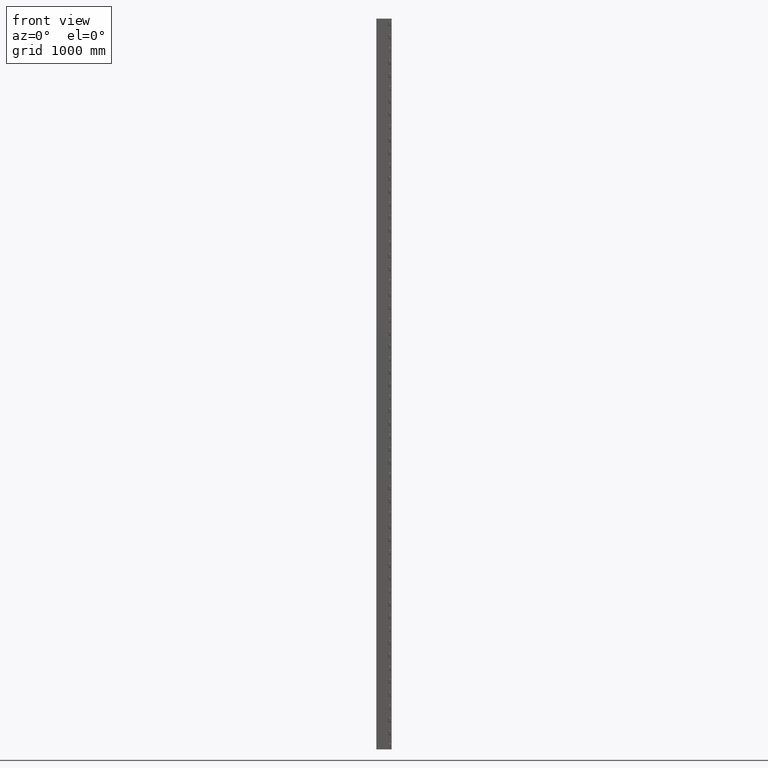
[diagram: clean part render]
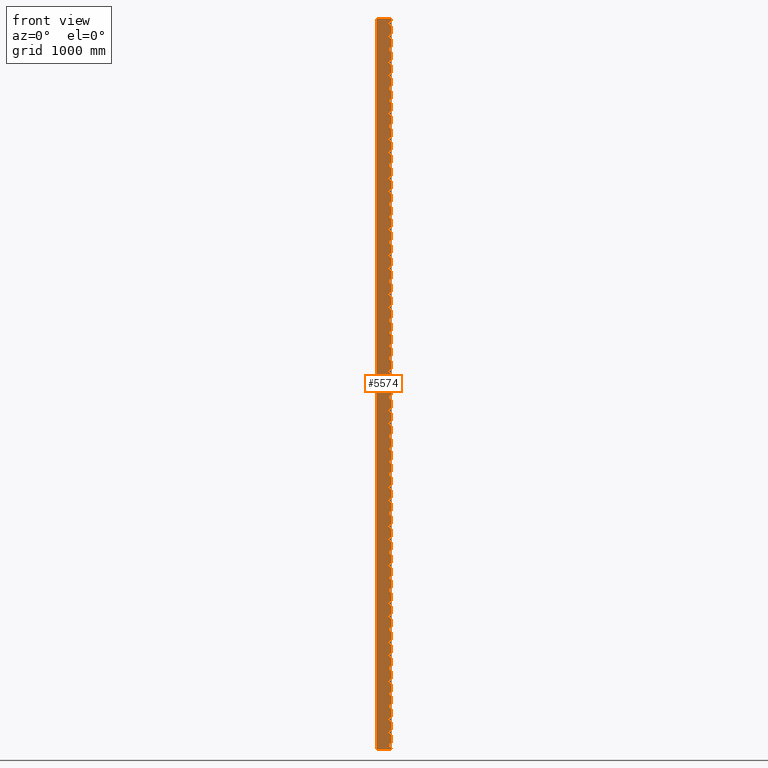
[diagram: same view with one face highlighted and labeled with its STEP entity id]
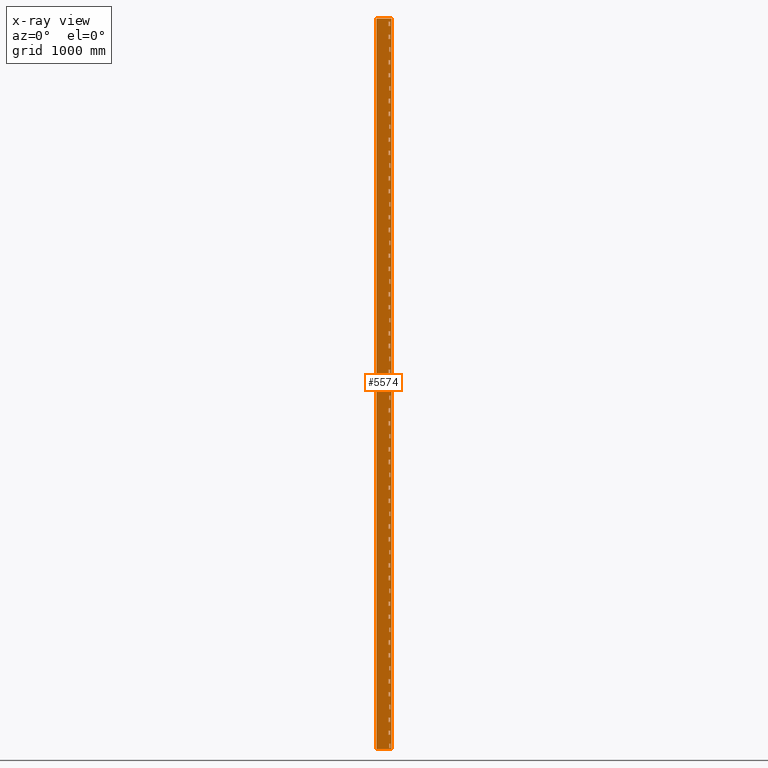
[diagram: x-ray of the same camera — body ghosted, the highlighted face saturated]
A machine part, front view. The second image highlights one B-rep face of the part: STEP entity #5574.
The next image is the same camera in x-ray: the body ghosted, the highlighted face saturated — about 0% of this face is hidden behind the body in this view.
In plain terms, the highlighted planar face has unit normal (0, -1, 0).
Its self-contained STEP definition (entity closure, byte-faithful):
#154=CARTESIAN_POINT('',(6893.3051583912074,6046.4066631202531,49.000000000026475));
#155=VERTEX_POINT('',#154);
#156=CARTESIAN_POINT('',(6865.0208871436116,6046.4066631205405,49.000000000026496));
#157=VERTEX_POINT('',#156);
#158=CARTESIAN_POINT('',(6893.3051583912074,6046.4066631202531,49.000000000026475));
#159=DIRECTION('',(-1.0,-2.572439E-013,0.0));
#160=VECTOR('',#159,28.284271247595825);
#161=LINE('',#158,#160);
#162=EDGE_CURVE('',#155,#157,#161,.T.);
#212=CARTESIAN_POINT('',(6893.3051583912074,6046.4066631202531,-484.99999999997385));
#213=VERTEX_POINT('',#212);
#214=CARTESIAN_POINT('',(6865.0208871436116,6046.4066631205405,-484.99999999997385));
#215=VERTEX_POINT('',#214);
#216=CARTESIAN_POINT('',(6893.3051583912074,6046.4066631202531,-484.99999999997385));
#217=DIRECTION('',(-1.0,-2.572439E-013,0.0));
#218=VECTOR('',#217,28.284271247595825);
#219=LINE('',#216,#218);
#220=EDGE_CURVE('',#213,#215,#219,.T.);
#270=CARTESIAN_POINT('',(6893.3051583912074,6046.4066631202531,-1018.9999999999742));
#271=VERTEX_POINT('',#270);
#272=CARTESIAN_POINT('',(6865.0208871436116,6046.4066631205405,-1018.9999999999742));
#273=VERTEX_POINT('',#272);
#274=CARTESIAN_POINT('',(6893.3051583912074,6046.4066631202531,-1018.9999999999742));
#275=DIRECTION('',(-1.0,-2.572439E-013,0.0));
#276=VECTOR('',#275,28.284271247595825);
#277=LINE('',#274,#276);
#278=EDGE_CURVE('',#271,#273,#277,.T.);
#328=CARTESIAN_POINT('',(6893.3051583912074,6046.4066631202531,-1552.9999999999743));
#329=VERTEX_POINT('',#328);
#330=CARTESIAN_POINT('',(6865.0208871436116,6046.4066631205405,-1552.9999999999743));
#331=VERTEX_POINT('',#330);
#332=CARTESIAN_POINT('',(6893.3051583912074,6046.4066631202531,-1552.9999999999743));
#333=DIRECTION('',(-1.0,-2.572439E-013,0.0));
#334=VECTOR('',#333,28.284271247595825);
#335=LINE('',#332,#334);
#336=EDGE_CURVE('',#329,#331,#335,.T.);
#386=CARTESIAN_POINT('',(6893.3051583912074,6046.4066631202531,-2086.999999999975));
#387=VERTEX_POINT('',#386);
#388=CARTESIAN_POINT('',(6865.0208871436116,6046.4066631205405,-2086.999999999975));
#389=VERTEX_POINT('',#388);
#390=CARTESIAN_POINT('',(6893.3051583912074,6046.4066631202531,-2086.999999999975));
#391=DIRECTION('',(-1.0,-2.572439E-013,0.0));
#392=VECTOR('',#391,28.284271247595825);
#393=LINE('',#390,#392);
#394=EDGE_CURVE('',#387,#389,#393,.T.);
#444=CARTESIAN_POINT('',(6893.3051583912074,6046.4066631202531,-2620.9999999999727));
#445=VERTEX_POINT('',#444);
#446=CARTESIAN_POINT('',(6865.0208871436116,6046.4066631205405,-2620.9999999999727));
#447=VERTEX_POINT('',#446);
#448=CARTESIAN_POINT('',(6893.3051583912074,6046.4066631202531,-2620.9999999999727));
#449=DIRECTION('',(-1.0,-2.572439E-013,0.0));
#450=VECTOR('',#449,28.284271247595825);
#451=LINE('',#448,#450);
#452=EDGE_CURVE('',#445,#447,#451,.T.);
#502=CARTESIAN_POINT('',(6893.3051583912074,6046.4066631202531,-3154.9999999999754));
#503=VERTEX_POINT('',#502);
#504=CARTESIAN_POINT('',(6865.0208871436116,6046.4066631205405,-3154.9999999999754));
#505=VERTEX_POINT('',#504);
#506=CARTESIAN_POINT('',(6893.3051583912074,6046.4066631202531,-3154.9999999999754));
#507=DIRECTION('',(-1.0,-2.572439E-013,0.0));
#508=VECTOR('',#507,28.284271247595825);
#509=LINE('',#506,#508);
#510=EDGE_CURVE('',#503,#505,#509,.T.);
#560=CARTESIAN_POINT('',(6893.3051583912074,6046.4066631202531,-3688.9999999999732));
#561=VERTEX_POINT('',#560);
#562=CARTESIAN_POINT('',(6865.0208871436116,6046.4066631205405,-3688.9999999999732));
#563=VERTEX_POINT('',#562);
#564=CARTESIAN_POINT('',(6893.3051583912074,6046.4066631202531,-3688.9999999999732));
#565=DIRECTION('',(-1.0,-2.572439E-013,0.0));
#566=VECTOR('',#565,28.284271247595825);
#567=LINE('',#564,#566);
#568=EDGE_CURVE('',#561,#563,#567,.T.);
#618=CARTESIAN_POINT('',(6893.3051583912074,6046.4066631202531,-4222.9999999999736));
#619=VERTEX_POINT('',#618);
#620=CARTESIAN_POINT('',(6865.0208871436116,6046.4066631205405,-4222.9999999999736));
#621=VERTEX_POINT('',#620);
#622=CARTESIAN_POINT('',(6893.3051583912074,6046.4066631202531,-4222.9999999999736));
#623=DIRECTION('',(-1.0,-2.572439E-013,0.0));
#624=VECTOR('',#623,28.284271247595825);
#625=LINE('',#622,#624);
#626=EDGE_CURVE('',#619,#621,#625,.T.);
#676=CARTESIAN_POINT('',(6893.3051583912074,6046.4066631202531,-4756.9999999999736));
#677=VERTEX_POINT('',#676);
#678=CARTESIAN_POINT('',(6865.0208871436116,6046.4066631205405,-4756.9999999999736));
#679=VERTEX_POINT('',#678);
#680=CARTESIAN_POINT('',(6893.3051583912074,6046.4066631202531,-4756.9999999999736));
#681=DIRECTION('',(-1.0,-2.572439E-013,0.0));
#682=VECTOR('',#681,28.284271247595825);
#683=LINE('',#680,#682);
#684=EDGE_CURVE('',#677,#679,#683,.T.);
#734=CARTESIAN_POINT('',(6893.3051583912074,6046.4066631202531,-5290.9999999999745));
#735=VERTEX_POINT('',#734);
#736=CARTESIAN_POINT('',(6865.0208871436116,6046.4066631205405,-5290.9999999999745));
#737=VERTEX_POINT('',#736);
#738=CARTESIAN_POINT('',(6893.3051583912074,6046.4066631202531,-5290.9999999999745));
#739=DIRECTION('',(-1.0,-2.572439E-013,0.0));
#740=VECTOR('',#739,28.284271247595825);
#741=LINE('',#738,#740);
#742=EDGE_CURVE('',#735,#737,#741,.T.);
#792=CARTESIAN_POINT('',(6893.3051583912074,6046.4066631202531,-5824.9999999999745));
#793=VERTEX_POINT('',#792);
#794=CARTESIAN_POINT('',(6865.0208871436116,6046.4066631205405,-5824.9999999999745));
#795=VERTEX_POINT('',#794);
#796=CARTESIAN_POINT('',(6893.3051583912074,6046.4066631202531,-5824.9999999999745));
#797=DIRECTION('',(-1.0,-2.572439E-013,0.0));
#798=VECTOR('',#797,28.284271247595825);
#799=LINE('',#796,#798);
#800=EDGE_CURVE('',#793,#795,#799,.T.);
#850=CARTESIAN_POINT('',(6893.3051583912074,6046.4066631202531,-6358.9999999999764));
#851=VERTEX_POINT('',#850);
#852=CARTESIAN_POINT('',(6865.0208871436116,6046.4066631205405,-6358.9999999999764));
#853=VERTEX_POINT('',#852);
#854=CARTESIAN_POINT('',(6893.3051583912074,6046.4066631202531,-6358.9999999999764));
#855=DIRECTION('',(-1.0,-2.572439E-013,0.0));
#856=VECTOR('',#855,28.284271247595825);
#857=LINE('',#854,#856);
#858=EDGE_CURVE('',#851,#853,#857,.T.);
#908=CARTESIAN_POINT('',(6893.3051583912074,6046.4066631202531,-6892.9999999999736));
#909=VERTEX_POINT('',#908);
#910=CARTESIAN_POINT('',(6865.0208871436116,6046.4066631205405,-6892.9999999999736));
#911=VERTEX_POINT('',#910);
#912=CARTESIAN_POINT('',(6893.3051583912074,6046.4066631202531,-6892.9999999999736));
#913=DIRECTION('',(-1.0,-2.572439E-013,0.0));
#914=VECTOR('',#913,28.284271247595825);
#915=LINE('',#912,#914);
#916=EDGE_CURVE('',#909,#911,#915,.T.);
#966=CARTESIAN_POINT('',(6893.3051583912074,6046.4066631202531,-7426.9999999999745));
#967=VERTEX_POINT('',#966);
#968=CARTESIAN_POINT('',(6865.0208871436116,6046.4066631205405,-7426.9999999999745));
#969=VERTEX_POINT('',#968);
#970=CARTESIAN_POINT('',(6893.3051583912074,6046.4066631202531,-7426.9999999999745));
#971=DIRECTION('',(-1.0,-2.572439E-013,0.0));
#972=VECTOR('',#971,28.284271247595825);
#973=LINE('',#970,#972);
#974=EDGE_CURVE('',#967,#969,#973,.T.);
#1024=CARTESIAN_POINT('',(6893.3051583912074,6046.4066631202531,-7960.9999999999745));
#1025=VERTEX_POINT('',#1024);
#1026=CARTESIAN_POINT('',(6865.0208871436116,6046.4066631205405,-7960.9999999999745));
#1027=VERTEX_POINT('',#1026);
#1028=CARTESIAN_POINT('',(6893.3051583912074,6046.4066631202531,-7960.9999999999745));
#1029=DIRECTION('',(-1.0,-2.572439E-013,0.0));
#1030=VECTOR('',#1029,28.284271247595825);
#1031=LINE('',#1028,#1030);
#1032=EDGE_CURVE('',#1025,#1027,#1031,.T.);
#1082=CARTESIAN_POINT('',(6893.3051583912074,6046.4066631202531,-8494.9999999999727));
#1083=VERTEX_POINT('',#1082);
#1084=CARTESIAN_POINT('',(6865.0208871436116,6046.4066631205405,-8494.9999999999727));
#1085=VERTEX_POINT('',#1084);
#1086=CARTESIAN_POINT('',(6893.3051583912074,6046.4066631202531,-8494.9999999999727));
#1087=DIRECTION('',(-1.0,-2.572439E-013,0.0));
#1088=VECTOR('',#1087,28.284271247595825);
#1089=LINE('',#1086,#1088);
#1090=EDGE_CURVE('',#1083,#1085,#1089,.T.);
#1140=CARTESIAN_POINT('',(6893.3051583912074,6046.4066631202531,-9028.9999999999745));
#1141=VERTEX_POINT('',#1140);
#1142=CARTESIAN_POINT('',(6865.0208871436116,6046.4066631205405,-9028.9999999999745));
#1143=VERTEX_POINT('',#1142);
#1144=CARTESIAN_POINT('',(6893.3051583912074,6046.4066631202531,-9028.9999999999745));
#1145=DIRECTION('',(-1.0,-2.572439E-013,0.0));
#1146=VECTOR('',#1145,28.284271247595825);
#1147=LINE('',#1144,#1146);
#1148=EDGE_CURVE('',#1141,#1143,#1147,.T.);
#1198=CARTESIAN_POINT('',(6893.3051583912074,6046.4066631202531,-9562.9999999999764));
#1199=VERTEX_POINT('',#1198);
#1200=CARTESIAN_POINT('',(6865.0208871436116,6046.4066631205405,-9562.9999999999764));
#1201=VERTEX_POINT('',#1200);
#1202=CARTESIAN_POINT('',(6893.3051583912074,6046.4066631202531,-9562.9999999999764));
#1203=DIRECTION('',(-1.0,-2.572439E-013,0.0));
#1204=VECTOR('',#1203,28.284271247595825);
#1205=LINE('',#1202,#1204);
#1206=EDGE_CURVE('',#1199,#1201,#1205,.T.);
#1256=CARTESIAN_POINT('',(6893.3051583907327,6046.4066631202531,-129.00000000001199));
#1257=VERTEX_POINT('',#1256);
#1258=CARTESIAN_POINT('',(6865.0208871432442,6046.4066631202859,-129.00000000001199));
#1259=VERTEX_POINT('',#1258);
#1260=CARTESIAN_POINT('',(6893.3051583907327,6046.4066631202531,-129.00000000001199));
#1261=DIRECTION('',(-1.0,-2.572439E-013,0.0));
#1262=VECTOR('',#1261,28.284271247488505);
#1263=LINE('',#1260,#1262);
#1264=EDGE_CURVE('',#1257,#1259,#1263,.T.);
#1314=CARTESIAN_POINT('',(6893.3051583907327,6046.4066631202531,-663.00000000001228));
#1315=VERTEX_POINT('',#1314);
#1316=CARTESIAN_POINT('',(6865.0208871432442,6046.4066631202859,-663.00000000001228));
#1317=VERTEX_POINT('',#1316);
#1318=CARTESIAN_POINT('',(6893.3051583907327,6046.4066631202531,-663.00000000001228));
#1319=DIRECTION('',(-1.0,-2.572439E-013,0.0));
#1320=VECTOR('',#1319,28.284271247488505);
#1321=LINE('',#1318,#1320);
#1322=EDGE_CURVE('',#1315,#1317,#1321,.T.);
#1372=CARTESIAN_POINT('',(6893.3051583907327,6046.4066631202531,-1197.0000000000127));
#1373=VERTEX_POINT('',#1372);
#1374=CARTESIAN_POINT('',(6865.0208871432442,6046.4066631202859,-1197.0000000000127));
#1375=VERTEX_POINT('',#1374);
#1376=CARTESIAN_POINT('',(6893.3051583907327,6046.4066631202531,-1197.0000000000127));
#1377=DIRECTION('',(-1.0,-2.572439E-013,0.0));
#1378=VECTOR('',#1377,28.284271247488505);
#1379=LINE('',#1376,#1378);
#1380=EDGE_CURVE('',#1373,#1375,#1379,.T.);
#1430=CARTESIAN_POINT('',(6893.3051583907327,6046.4066631202531,-1731.0000000000132));
#1431=VERTEX_POINT('',#1430);
#1432=CARTESIAN_POINT('',(6865.0208871432442,6046.4066631202859,-1731.0000000000132));
#1433=VERTEX_POINT('',#1432);
#1434=CARTESIAN_POINT('',(6893.3051583907327,6046.4066631202531,-1731.0000000000132));
#1435=DIRECTION('',(-1.0,-2.572439E-013,0.0));
#1436=VECTOR('',#1435,28.284271247488505);
#1437=LINE('',#1434,#1436);
#1438=EDGE_CURVE('',#1431,#1433,#1437,.T.);
#1488=CARTESIAN_POINT('',(6893.3051583907327,6046.4066631202531,-2265.0000000000132));
#1489=VERTEX_POINT('',#1488);
#1490=CARTESIAN_POINT('',(6865.0208871432442,6046.4066631202859,-2265.0000000000132));
#1491=VERTEX_POINT('',#1490);
#1492=CARTESIAN_POINT('',(6893.3051583907327,6046.4066631202531,-2265.0000000000132));
#1493=DIRECTION('',(-1.0,-2.572439E-013,0.0));
#1494=VECTOR('',#1493,28.284271247488505);
#1495=LINE('',#1492,#1494);
#1496=EDGE_CURVE('',#1489,#1491,#1495,.T.);
#1546=CARTESIAN_POINT('',(6893.3051583907327,6046.4066631202531,-2799.0000000000127));
#1547=VERTEX_POINT('',#1546);
#1548=CARTESIAN_POINT('',(6865.0208871432442,6046.4066631202859,-2799.0000000000127));
#1549=VERTEX_POINT('',#1548);
#1550=CARTESIAN_POINT('',(6893.3051583907327,6046.4066631202531,-2799.0000000000127));
#1551=DIRECTION('',(-1.0,-2.572439E-013,0.0));
#1552=VECTOR('',#1551,28.284271247488505);
#1553=LINE('',#1550,#1552);
#1554=EDGE_CURVE('',#1547,#1549,#1553,.T.);
#1604=CARTESIAN_POINT('',(6893.3051583907327,6046.4066631202531,-3333.0000000000146));
#1605=VERTEX_POINT('',#1604);
#1606=CARTESIAN_POINT('',(6865.0208871432442,6046.4066631202859,-3333.0000000000146));
#1607=VERTEX_POINT('',#1606);
#1608=CARTESIAN_POINT('',(6893.3051583907327,6046.4066631202531,-3333.0000000000146));
#1609=DIRECTION('',(-1.0,-2.572439E-013,0.0));
#1610=VECTOR('',#1609,28.284271247488505);
#1611=LINE('',#1608,#1610);
#1612=EDGE_CURVE('',#1605,#1607,#1611,.T.);
#1662=CARTESIAN_POINT('',(6893.3051583907327,6046.4066631202531,-3867.0000000000136));
#1663=VERTEX_POINT('',#1662);
#1664=CARTESIAN_POINT('',(6865.0208871432442,6046.4066631202859,-3867.0000000000136));
#1665=VERTEX_POINT('',#1664);
#1666=CARTESIAN_POINT('',(6893.3051583907327,6046.4066631202531,-3867.0000000000136));
#1667=DIRECTION('',(-1.0,-2.572439E-013,0.0));
#1668=VECTOR('',#1667,28.284271247488505);
#1669=LINE('',#1666,#1668);
#1670=EDGE_CURVE('',#1663,#1665,#1669,.T.);
#1720=CARTESIAN_POINT('',(6893.3051583907327,6046.4066631202531,-4401.0000000000136));
#1721=VERTEX_POINT('',#1720);
#1722=CARTESIAN_POINT('',(6865.0208871432442,6046.4066631202859,-4401.0000000000136));
#1723=VERTEX_POINT('',#1722);
#1724=CARTESIAN_POINT('',(6893.3051583907327,6046.4066631202531,-4401.0000000000136));
#1725=DIRECTION('',(-1.0,-2.572439E-013,0.0));
#1726=VECTOR('',#1725,28.284271247488505);
#1727=LINE('',#1724,#1726);
#1728=EDGE_CURVE('',#1721,#1723,#1727,.T.);
#1778=CARTESIAN_POINT('',(6893.3051583907327,6046.4066631202531,-4935.0000000000127));
#1779=VERTEX_POINT('',#1778);
#1780=CARTESIAN_POINT('',(6865.0208871432442,6046.4066631202859,-4935.0000000000127));
#1781=VERTEX_POINT('',#1780);
#1782=CARTESIAN_POINT('',(6893.3051583907327,6046.4066631202531,-4935.0000000000127));
#1783=DIRECTION('',(-1.0,-2.572439E-013,0.0));
#1784=VECTOR('',#1783,28.284271247488505);
#1785=LINE('',#1782,#1784);
#1786=EDGE_CURVE('',#1779,#1781,#1785,.T.);
#1836=CARTESIAN_POINT('',(6893.3051583907327,6046.4066631202531,-5469.0000000000164));
#1837=VERTEX_POINT('',#1836);
#1838=CARTESIAN_POINT('',(6865.0208871432442,6046.4066631202859,-5469.0000000000164));
#1839=VERTEX_POINT('',#1838);
#1840=CARTESIAN_POINT('',(6893.3051583907327,6046.4066631202531,-5469.0000000000164));
#1841=DIRECTION('',(-1.0,-2.572439E-013,0.0));
#1842=VECTOR('',#1841,28.284271247488505);
#1843=LINE('',#1840,#1842);
#1844=EDGE_CURVE('',#1837,#1839,#1843,.T.);
#1894=CARTESIAN_POINT('',(6893.3051583907327,6046.4066631202531,-6003.0000000000127));
#1895=VERTEX_POINT('',#1894);
#1896=CARTESIAN_POINT('',(6865.0208871432442,6046.4066631202859,-6003.0000000000127));
#1897=VERTEX_POINT('',#1896);
#1898=CARTESIAN_POINT('',(6893.3051583907327,6046.4066631202531,-6003.0000000000127));
#1899=DIRECTION('',(-1.0,-2.572439E-013,0.0));
#1900=VECTOR('',#1899,28.284271247488505);
#1901=LINE('',#1898,#1900);
#1902=EDGE_CURVE('',#1895,#1897,#1901,.T.);
#1952=CARTESIAN_POINT('',(6893.3051583907327,6046.4066631202531,-6537.0000000000127));
#1953=VERTEX_POINT('',#1952);
#1954=CARTESIAN_POINT('',(6865.0208871432442,6046.4066631202859,-6537.0000000000127));
#1955=VERTEX_POINT('',#1954);
#1956=CARTESIAN_POINT('',(6893.3051583907327,6046.4066631202531,-6537.0000000000127));
#1957=DIRECTION('',(-1.0,-2.572439E-013,0.0));
#1958=VECTOR('',#1957,28.284271247488505);
#1959=LINE('',#1956,#1958);
#1960=EDGE_CURVE('',#1953,#1955,#1959,.T.);
#2010=CARTESIAN_POINT('',(6893.3051583907327,6046.4066631202531,-7071.0000000000136));
#2011=VERTEX_POINT('',#2010);
#2012=CARTESIAN_POINT('',(6865.0208871432442,6046.4066631202859,-7071.0000000000136));
#2013=VERTEX_POINT('',#2012);
#2014=CARTESIAN_POINT('',(6893.3051583907327,6046.4066631202531,-7071.0000000000136));
#2015=DIRECTION('',(-1.0,-2.572439E-013,0.0));
#2016=VECTOR('',#2015,28.284271247488505);
#2017=LINE('',#2014,#2016);
#2018=EDGE_CURVE('',#2011,#2013,#2017,.T.);
#2068=CARTESIAN_POINT('',(6893.3051583907327,6046.4066631202531,-7605.0000000000127));
#2069=VERTEX_POINT('',#2068);
#2070=CARTESIAN_POINT('',(6865.0208871432442,6046.4066631202859,-7605.0000000000127));
#2071=VERTEX_POINT('',#2070);
#2072=CARTESIAN_POINT('',(6893.3051583907327,6046.4066631202531,-7605.0000000000127));
#2073=DIRECTION('',(-1.0,-2.572439E-013,0.0));
#2074=VECTOR('',#2073,28.284271247488505);
#2075=LINE('',#2072,#2074);
#2076=EDGE_CURVE('',#2069,#2071,#2075,.T.);
#2126=CARTESIAN_POINT('',(6893.3051583907327,6046.4066631202531,-8139.0000000000127));
#2127=VERTEX_POINT('',#2126);
#2128=CARTESIAN_POINT('',(6865.0208871432442,6046.4066631202859,-8139.0000000000127));
#2129=VERTEX_POINT('',#2128);
#2130=CARTESIAN_POINT('',(6893.3051583907327,6046.4066631202531,-8139.0000000000127));
#2131=DIRECTION('',(-1.0,-2.572439E-013,0.0));
#2132=VECTOR('',#2131,28.284271247488505);
#2133=LINE('',#2130,#2132);
#2134=EDGE_CURVE('',#2127,#2129,#2133,.T.);
#2184=CARTESIAN_POINT('',(6893.3051583907327,6046.4066631202531,-8673.0000000000127));
#2185=VERTEX_POINT('',#2184);
#2186=CARTESIAN_POINT('',(6865.0208871432442,6046.4066631202859,-8673.0000000000127));
#2187=VERTEX_POINT('',#2186);
#2188=CARTESIAN_POINT('',(6893.3051583907327,6046.4066631202531,-8673.0000000000127));
#2189=DIRECTION('',(-1.0,-2.572439E-013,0.0));
#2190=VECTOR('',#2189,28.284271247488505);
#2191=LINE('',#2188,#2190);
#2192=EDGE_CURVE('',#2185,#2187,#2191,.T.);
#2242=CARTESIAN_POINT('',(6893.3051583907327,6046.4066631202531,-9207.0000000000146));
#2243=VERTEX_POINT('',#2242);
#2244=CARTESIAN_POINT('',(6865.0208871432442,6046.4066631202859,-9207.0000000000146));
#2245=VERTEX_POINT('',#2244);
#2246=CARTESIAN_POINT('',(6893.3051583907327,6046.4066631202531,-9207.0000000000146));
#2247=DIRECTION('',(-1.0,-2.572439E-013,0.0));
#2248=VECTOR('',#2247,28.284271247488505);
#2249=LINE('',#2246,#2248);
#2250=EDGE_CURVE('',#2243,#2245,#2249,.T.);
#2300=CARTESIAN_POINT('',(6893.3051583907327,6046.4066631202531,-9741.0000000000146));
#2301=VERTEX_POINT('',#2300);
#2302=CARTESIAN_POINT('',(6865.0208871432442,6046.4066631202859,-9741.0000000000146));
#2303=VERTEX_POINT('',#2302);
#2304=CARTESIAN_POINT('',(6893.3051583907327,6046.4066631202531,-9741.0000000000146));
#2305=DIRECTION('',(-1.0,-2.572439E-013,0.0));
#2306=VECTOR('',#2305,28.284271247488505);
#2307=LINE('',#2304,#2306);
#2308=EDGE_CURVE('',#2301,#2303,#2307,.T.);
#2358=CARTESIAN_POINT('',(6875.0208871430568,6046.4066631202495,-4639.0000000000018));
#2359=VERTEX_POINT('',#2358);
#2360=CARTESIAN_POINT('',(6895.0208871430605,6046.4066631202531,-4639.0000000000018));
#2361=VERTEX_POINT('',#2360);
#2362=CARTESIAN_POINT('',(6875.0208871430568,6046.4066631202495,-4639.0000000000018));
#2363=DIRECTION('',(1.0,2.273737E-013,0.0));
#2364=VECTOR('',#2363,20.000000000002728);
#2365=LINE('',#2362,#2364);
#2366=EDGE_CURVE('',#2359,#2361,#2365,.T.);
#2398=CARTESIAN_POINT('',(6875.0208871430568,6046.4066631202495,-4105.0000000000018));
#2399=VERTEX_POINT('',#2398);
#2400=CARTESIAN_POINT('',(6895.0208871430605,6046.4066631202531,-4105.0000000000018));
#2401=VERTEX_POINT('',#2400);
#2402=CARTESIAN_POINT('',(6875.0208871430568,6046.4066631202495,-4105.0000000000018));
#2403=DIRECTION('',(1.0,2.273737E-013,0.0));
#2404=VECTOR('',#2403,20.000000000002728);
#2405=LINE('',#2402,#2404);
#2406=EDGE_CURVE('',#2399,#2401,#2405,.T.);
#2438=CARTESIAN_POINT('',(6875.0208871430568,6046.4066631202495,-3571.0000000000032));
#2439=VERTEX_POINT('',#2438);
#2440=CARTESIAN_POINT('',(6895.0208871430605,6046.4066631202531,-3571.0000000000032));
#2441=VERTEX_POINT('',#2440);
#2442=CARTESIAN_POINT('',(6875.0208871430568,6046.4066631202495,-3571.0000000000032));
#2443=DIRECTION('',(1.0,2.273737E-013,0.0));
#2444=VECTOR('',#2443,20.000000000002728);
#2445=LINE('',#2442,#2444);
#2446=EDGE_CURVE('',#2439,#2441,#2445,.T.);
#2478=CARTESIAN_POINT('',(6875.0208871430568,6046.4066631202495,-3037.0000000000009));
#2479=VERTEX_POINT('',#2478);
#2480=CARTESIAN_POINT('',(6895.0208871430605,6046.4066631202531,-3037.0000000000009));
#2481=VERTEX_POINT('',#2480);
#2482=CARTESIAN_POINT('',(6875.0208871430568,6046.4066631202495,-3037.0000000000009));
#2483=DIRECTION('',(1.0,2.273737E-013,0.0));
#2484=VECTOR('',#2483,20.000000000002728);
#2485=LINE('',#2482,#2484);
#2486=EDGE_CURVE('',#2479,#2481,#2485,.T.);
#2518=CARTESIAN_POINT('',(6875.0208871430568,6046.4066631202495,-2503.0000000000014));
#2519=VERTEX_POINT('',#2518);
#2520=CARTESIAN_POINT('',(6895.0208871430605,6046.4066631202531,-2503.0000000000014));
#2521=VERTEX_POINT('',#2520);
#2522=CARTESIAN_POINT('',(6875.0208871430568,6046.4066631202495,-2503.0000000000014));
#2523=DIRECTION('',(1.0,2.273737E-013,0.0));
#2524=VECTOR('',#2523,20.000000000002728);
#2525=LINE('',#2522,#2524);
#2526=EDGE_CURVE('',#2519,#2521,#2525,.T.);
#2558=CARTESIAN_POINT('',(6875.0208871430568,6046.4066631202495,-1969.0000000000027));
#2559=VERTEX_POINT('',#2558);
#2560=CARTESIAN_POINT('',(6895.0208871430605,6046.4066631202531,-1969.0000000000027));
#2561=VERTEX_POINT('',#2560);
#2562=CARTESIAN_POINT('',(6875.0208871430568,6046.4066631202495,-1969.0000000000027));
#2563=DIRECTION('',(1.0,2.273737E-013,0.0));
#2564=VECTOR('',#2563,20.000000000002728);
#2565=LINE('',#2562,#2564);
#2566=EDGE_CURVE('',#2559,#2561,#2565,.T.);
#2598=CARTESIAN_POINT('',(6875.0208871430568,6046.4066631202495,-1435.0000000000018));
#2599=VERTEX_POINT('',#2598);
#2600=CARTESIAN_POINT('',(6895.0208871430605,6046.4066631202531,-1435.0000000000018));
#2601=VERTEX_POINT('',#2600);
#2602=CARTESIAN_POINT('',(6875.0208871430568,6046.4066631202495,-1435.0000000000018));
#2603=DIRECTION('',(1.0,2.273737E-013,0.0));
#2604=VECTOR('',#2603,20.000000000002728);
#2605=LINE('',#2602,#2604);
#2606=EDGE_CURVE('',#2599,#2601,#2605,.T.);
#2638=CARTESIAN_POINT('',(6875.0208871430568,6046.4066631202495,-901.00000000000227));
#2639=VERTEX_POINT('',#2638);
#2640=CARTESIAN_POINT('',(6895.0208871430605,6046.4066631202531,-901.00000000000227));
#2641=VERTEX_POINT('',#2640);
#2642=CARTESIAN_POINT('',(6875.0208871430568,6046.4066631202495,-901.00000000000227));
#2643=DIRECTION('',(1.0,2.273737E-013,0.0));
#2644=VECTOR('',#2643,20.000000000002728);
#2645=LINE('',#2642,#2644);
#2646=EDGE_CURVE('',#2639,#2641,#2645,.T.);
#2678=CARTESIAN_POINT('',(6875.0208871430568,6046.4066631202495,-367.00000000000216));
#2679=VERTEX_POINT('',#2678);
#2680=CARTESIAN_POINT('',(6895.0208871430605,6046.4066631202531,-367.00000000000216));
#2681=VERTEX_POINT('',#2680);
#2682=CARTESIAN_POINT('',(6875.0208871430568,6046.4066631202495,-367.00000000000216));
#2683=DIRECTION('',(1.0,2.273737E-013,0.0));
#2684=VECTOR('',#2683,20.000000000002728);
#2685=LINE('',#2682,#2684);
#2686=EDGE_CURVE('',#2679,#2681,#2685,.T.);
#2718=CARTESIAN_POINT('',(6875.0208871430568,6046.4066631202495,-9979.0000000000036));
#2719=VERTEX_POINT('',#2718);
#2720=CARTESIAN_POINT('',(6895.0208871430605,6046.4066631202531,-9979.0000000000036));
#2721=VERTEX_POINT('',#2720);
#2722=CARTESIAN_POINT('',(6875.0208871430568,6046.4066631202495,-9979.0000000000036));
#2723=DIRECTION('',(1.0,2.273737E-013,0.0));
#2724=VECTOR('',#2723,20.000000000002728);
#2725=LINE('',#2722,#2724);
#2726=EDGE_CURVE('',#2719,#2721,#2725,.T.);
#2758=CARTESIAN_POINT('',(6875.0208871430568,6046.4066631202495,-9445.0000000000036));
#2759=VERTEX_POINT('',#2758);
#2760=CARTESIAN_POINT('',(6895.0208871430605,6046.4066631202531,-9445.0000000000036));
#2761=VERTEX_POINT('',#2760);
#2762=CARTESIAN_POINT('',(6875.0208871430568,6046.4066631202495,-9445.0000000000036));
#2763=DIRECTION('',(1.0,2.273737E-013,0.0));
#2764=VECTOR('',#2763,20.000000000002728);
#2765=LINE('',#2762,#2764);
#2766=EDGE_CURVE('',#2759,#2761,#2765,.T.);
#2798=CARTESIAN_POINT('',(6875.0208871430568,6046.4066631202495,-8911.0000000000036));
#2799=VERTEX_POINT('',#2798);
#2800=CARTESIAN_POINT('',(6895.0208871430605,6046.4066631202531,-8911.0000000000036));
#2801=VERTEX_POINT('',#2800);
#2802=CARTESIAN_POINT('',(6875.0208871430568,6046.4066631202495,-8911.0000000000036));
#2803=DIRECTION('',(1.0,2.273737E-013,0.0));
#2804=VECTOR('',#2803,20.000000000002728);
#2805=LINE('',#2802,#2804);
#2806=EDGE_CURVE('',#2799,#2801,#2805,.T.);
#2838=CARTESIAN_POINT('',(6875.0208871430568,6046.4066631202495,-8377.0000000000036));
#2839=VERTEX_POINT('',#2838);
#2840=CARTESIAN_POINT('',(6895.0208871430605,6046.4066631202531,-8377.0000000000036));
#2841=VERTEX_POINT('',#2840);
#2842=CARTESIAN_POINT('',(6875.0208871430568,6046.4066631202495,-8377.0000000000036));
#2843=DIRECTION('',(1.0,2.273737E-013,0.0));
#2844=VECTOR('',#2843,20.000000000002728);
#2845=LINE('',#2842,#2844);
#2846=EDGE_CURVE('',#2839,#2841,#2845,.T.);
#2878=CARTESIAN_POINT('',(6875.0208871430568,6046.4066631202495,-7843.0000000000036));
#2879=VERTEX_POINT('',#2878);
#2880=CARTESIAN_POINT('',(6895.0208871430605,6046.4066631202531,-7843.0000000000036));
#2881=VERTEX_POINT('',#2880);
#2882=CARTESIAN_POINT('',(6875.0208871430568,6046.4066631202495,-7843.0000000000036));
#2883=DIRECTION('',(1.0,2.273737E-013,0.0));
#2884=VECTOR('',#2883,20.000000000002728);
#2885=LINE('',#2882,#2884);
#2886=EDGE_CURVE('',#2879,#2881,#2885,.T.);
#2918=CARTESIAN_POINT('',(6875.0208871430568,6046.4066631202495,-7309.0000000000036));
#2919=VERTEX_POINT('',#2918);
#2920=CARTESIAN_POINT('',(6895.0208871430605,6046.4066631202531,-7309.0000000000036));
#2921=VERTEX_POINT('',#2920);
#2922=CARTESIAN_POINT('',(6875.0208871430568,6046.4066631202495,-7309.0000000000036));
#2923=DIRECTION('',(1.0,2.273737E-013,0.0));
#2924=VECTOR('',#2923,20.000000000002728);
#2925=LINE('',#2922,#2924);
#2926=EDGE_CURVE('',#2919,#2921,#2925,.T.);
#2958=CARTESIAN_POINT('',(6875.0208871430568,6046.4066631202495,-6775.0000000000018));
#2959=VERTEX_POINT('',#2958);
#2960=CARTESIAN_POINT('',(6895.0208871430605,6046.4066631202531,-6775.0000000000018));
#2961=VERTEX_POINT('',#2960);
#2962=CARTESIAN_POINT('',(6875.0208871430568,6046.4066631202495,-6775.0000000000018));
#2963=DIRECTION('',(1.0,2.273737E-013,0.0));
#2964=VECTOR('',#2963,20.000000000002728);
#2965=LINE('',#2962,#2964);
#2966=EDGE_CURVE('',#2959,#2961,#2965,.T.);
#2998=CARTESIAN_POINT('',(6875.0208871430568,6046.4066631202495,-6241.0000000000018));
#2999=VERTEX_POINT('',#2998);
#3000=CARTESIAN_POINT('',(6895.0208871430605,6046.4066631202531,-6241.0000000000018));
#3001=VERTEX_POINT('',#3000);
#3002=CARTESIAN_POINT('',(6875.0208871430568,6046.4066631202495,-6241.0000000000018));
#3003=DIRECTION('',(1.0,2.273737E-013,0.0));
#3004=VECTOR('',#3003,20.000000000002728);
#3005=LINE('',#3002,#3004);
#3006=EDGE_CURVE('',#2999,#3001,#3005,.T.);
#3038=CARTESIAN_POINT('',(6875.0208871430568,6046.4066631202495,-5707.0000000000027));
#3039=VERTEX_POINT('',#3038);
#3040=CARTESIAN_POINT('',(6895.0208871430605,6046.4066631202531,-5707.0000000000027));
#3041=VERTEX_POINT('',#3040);
#3042=CARTESIAN_POINT('',(6875.0208871430568,6046.4066631202495,-5707.0000000000027));
#3043=DIRECTION('',(1.0,2.273737E-013,0.0));
#3044=VECTOR('',#3043,20.000000000002728);
#3045=LINE('',#3042,#3044);
#3046=EDGE_CURVE('',#3039,#3041,#3045,.T.);
#3078=CARTESIAN_POINT('',(6875.0208871430568,6046.4066631202495,-5113.0000000000027));
#3079=VERTEX_POINT('',#3078);
#3080=CARTESIAN_POINT('',(6875.0208871430568,6046.4066631202495,-5173.0000000000018));
#3081=VERTEX_POINT('',#3080);
#3082=CARTESIAN_POINT('',(6875.0208871430568,6046.4066631202495,-5113.0000000000027));
#3083=DIRECTION('',(0.0,0.0,-1.0));
#3084=VECTOR('',#3083,59.999999999999091);
#3085=LINE('',#3082,#3084);
#3086=EDGE_CURVE('',#3079,#3081,#3085,.T.);
#3136=CARTESIAN_POINT('',(6875.0208871430568,6046.4066631202495,-5647.0000000000018));
#3137=VERTEX_POINT('',#3136);
#3138=CARTESIAN_POINT('',(6875.0208871430568,6046.4066631202495,-5647.0000000000018));
#3139=DIRECTION('',(0.0,0.0,-1.0));
#3140=VECTOR('',#3139,60.0);
#3141=LINE('',#3138,#3140);
#3142=EDGE_CURVE('',#3137,#3039,#3141,.T.);
#3185=CARTESIAN_POINT('',(6875.0208871430568,6046.4066631202495,-6181.0000000000018));
#3186=VERTEX_POINT('',#3185);
#3187=CARTESIAN_POINT('',(6875.0208871430568,6046.4066631202495,-6181.0000000000018));
#3188=DIRECTION('',(0.0,0.0,-1.0));
#3189=VECTOR('',#3188,60.0);
#3190=LINE('',#3187,#3189);
#3191=EDGE_CURVE('',#3186,#2999,#3190,.T.);
#3234=CARTESIAN_POINT('',(6875.0208871430568,6046.4066631202495,-6715.0000000000018));
#3235=VERTEX_POINT('',#3234);
#3236=CARTESIAN_POINT('',(6875.0208871430568,6046.4066631202495,-6715.0000000000018));
#3237=DIRECTION('',(0.0,0.0,-1.0));
#3238=VECTOR('',#3237,60.000000000000909);
#3239=LINE('',#3236,#3238);
#3240=EDGE_CURVE('',#3235,#2959,#3239,.T.);
#3283=CARTESIAN_POINT('',(6875.0208871430568,6046.4066631202495,-7249.0000000000036));
#3284=VERTEX_POINT('',#3283);
#3285=CARTESIAN_POINT('',(6875.0208871430568,6046.4066631202495,-7249.0000000000036));
#3286=DIRECTION('',(0.0,0.0,-1.0));
#3287=VECTOR('',#3286,59.999999999999091);
#3288=LINE('',#3285,#3287);
#3289=EDGE_CURVE('',#3284,#2919,#3288,.T.);
#3332=CARTESIAN_POINT('',(6875.0208871430568,6046.4066631202495,-7783.0000000000036));
#3333=VERTEX_POINT('',#3332);
#3334=CARTESIAN_POINT('',(6875.0208871430568,6046.4066631202495,-7783.0000000000036));
#3335=DIRECTION('',(0.0,0.0,-1.0));
#3336=VECTOR('',#3335,59.999999999999091);
#3337=LINE('',#3334,#3336);
#3338=EDGE_CURVE('',#3333,#2879,#3337,.T.);
#3381=CARTESIAN_POINT('',(6875.0208871430568,6046.4066631202495,-8317.0000000000055));
#3382=VERTEX_POINT('',#3381);
#3383=CARTESIAN_POINT('',(6875.0208871430568,6046.4066631202495,-8317.0000000000055));
#3384=DIRECTION('',(0.0,0.0,-1.0));
#3385=VECTOR('',#3384,60.0);
#3386=LINE('',#3383,#3385);
#3387=EDGE_CURVE('',#3382,#2839,#3386,.T.);
#3430=CARTESIAN_POINT('',(6875.0208871430568,6046.4066631202495,-8851.0000000000055));
#3431=VERTEX_POINT('',#3430);
#3432=CARTESIAN_POINT('',(6875.0208871430568,6046.4066631202495,-8851.0000000000055));
#3433=DIRECTION('',(0.0,0.0,-1.0));
#3434=VECTOR('',#3433,60.0);
#3435=LINE('',#3432,#3434);
#3436=EDGE_CURVE('',#3431,#2799,#3435,.T.);
#3479=CARTESIAN_POINT('',(6875.0208871430568,6046.4066631202495,-9385.0000000000036));
#3480=VERTEX_POINT('',#3479);
#3481=CARTESIAN_POINT('',(6875.0208871430568,6046.4066631202495,-9385.0000000000036));
#3482=DIRECTION('',(0.0,0.0,-1.0));
#3483=VECTOR('',#3482,60.0);
#3484=LINE('',#3481,#3483);
#3485=EDGE_CURVE('',#3480,#2759,#3484,.T.);
#3528=CARTESIAN_POINT('',(6875.0208871430568,6046.4066631202495,-9919.0000000000036));
#3529=VERTEX_POINT('',#3528);
#3530=CARTESIAN_POINT('',(6875.0208871430568,6046.4066631202495,-9919.0000000000036));
#3531=DIRECTION('',(0.0,0.0,-1.0));
#3532=VECTOR('',#3531,60.0);
#3533=LINE('',#3530,#3532);
#3534=EDGE_CURVE('',#3529,#2719,#3533,.T.);
#3577=CARTESIAN_POINT('',(6875.0208871430568,6046.4066631202495,-307.0000000000021));
#3578=VERTEX_POINT('',#3577);
#3579=CARTESIAN_POINT('',(6875.0208871430568,6046.4066631202495,-307.0000000000021));
#3580=DIRECTION('',(0.0,0.0,-1.0));
#3581=VECTOR('',#3580,60.000000000000057);
#3582=LINE('',#3579,#3581);
#3583=EDGE_CURVE('',#3578,#2679,#3582,.T.);
#3626=CARTESIAN_POINT('',(6875.0208871430568,6046.4066631202495,-841.00000000000239));
#3627=VERTEX_POINT('',#3626);
#3628=CARTESIAN_POINT('',(6875.0208871430568,6046.4066631202495,-841.00000000000239));
#3629=DIRECTION('',(0.0,0.0,-1.0));
#3630=VECTOR('',#3629,60.0);
#3631=LINE('',#3628,#3630);
#3632=EDGE_CURVE('',#3627,#2639,#3631,.T.);
#3675=CARTESIAN_POINT('',(6875.0208871430568,6046.4066631202495,-1375.0000000000023));
#3676=VERTEX_POINT('',#3675);
#3677=CARTESIAN_POINT('',(6875.0208871430568,6046.4066631202495,-1375.0000000000023));
#3678=DIRECTION('',(0.0,0.0,-1.0));
#3679=VECTOR('',#3678,59.999999999999545);
#3680=LINE('',#3677,#3679);
#3681=EDGE_CURVE('',#3676,#2599,#3680,.T.);
#3724=CARTESIAN_POINT('',(6875.0208871430568,6046.4066631202495,-1909.0000000000018));
#3725=VERTEX_POINT('',#3724);
#3726=CARTESIAN_POINT('',(6875.0208871430568,6046.4066631202495,-1909.0000000000018));
#3727=DIRECTION('',(0.0,0.0,-1.0));
#3728=VECTOR('',#3727,60.000000000000909);
#3729=LINE('',#3726,#3728);
#3730=EDGE_CURVE('',#3725,#2559,#3729,.T.);
#3773=CARTESIAN_POINT('',(6875.0208871430568,6046.4066631202495,-2443.0000000000023));
#3774=VERTEX_POINT('',#3773);
#3775=CARTESIAN_POINT('',(6875.0208871430568,6046.4066631202495,-2443.0000000000023));
#3776=DIRECTION('',(0.0,0.0,-1.0));
#3777=VECTOR('',#3776,59.999999999999545);
#3778=LINE('',#3775,#3777);
#3779=EDGE_CURVE('',#3774,#2519,#3778,.T.);
#3822=CARTESIAN_POINT('',(6875.0208871430568,6046.4066631202495,-2977.0000000000027));
#3823=VERTEX_POINT('',#3822);
#3824=CARTESIAN_POINT('',(6875.0208871430568,6046.4066631202495,-2977.0000000000027));
#3825=DIRECTION('',(0.0,0.0,-1.0));
#3826=VECTOR('',#3825,59.999999999998181);
#3827=LINE('',#3824,#3826);
#3828=EDGE_CURVE('',#3823,#2479,#3827,.T.);
#3871=CARTESIAN_POINT('',(6875.0208871430568,6046.4066631202495,-3511.0000000000027));
#3872=VERTEX_POINT('',#3871);
#3873=CARTESIAN_POINT('',(6875.0208871430568,6046.4066631202495,-3511.0000000000027));
#3874=DIRECTION('',(0.0,0.0,-1.0));
#3875=VECTOR('',#3874,60.0);
#3876=LINE('',#3873,#3875);
#3877=EDGE_CURVE('',#3872,#2439,#3876,.T.);
#3920=CARTESIAN_POINT('',(6875.0208871430568,6046.4066631202495,-4045.0000000000018));
#3921=VERTEX_POINT('',#3920);
#3922=CARTESIAN_POINT('',(6875.0208871430568,6046.4066631202495,-4045.0000000000018));
#3923=DIRECTION('',(0.0,0.0,-1.0));
#3924=VECTOR('',#3923,60.0);
#3925=LINE('',#3922,#3924);
#3926=EDGE_CURVE('',#3921,#2399,#3925,.T.);
#3969=CARTESIAN_POINT('',(6875.0208871430568,6046.4066631202495,-4579.0000000000018));
#3970=VERTEX_POINT('',#3969);
#3971=CARTESIAN_POINT('',(6875.0208871430568,6046.4066631202495,-4579.0000000000018));
#3972=DIRECTION('',(0.0,0.0,-1.0));
#3973=VECTOR('',#3972,60.0);
#3974=LINE('',#3971,#3973);
#3975=EDGE_CURVE('',#3970,#2359,#3974,.T.);
#4018=CARTESIAN_POINT('',(6895.0208871430605,6046.4066631202531,-5173.0000000000018));
#4019=VERTEX_POINT('',#4018);
#4020=CARTESIAN_POINT('',(6875.0208871430568,6046.4066631202495,-5173.0000000000018));
#4021=DIRECTION('',(1.0,2.273737E-013,0.0));
#4022=VECTOR('',#4021,20.000000000002728);
#4023=LINE('',#4020,#4022);
#4024=EDGE_CURVE('',#3081,#4019,#4023,.T.);
#4198=CARTESIAN_POINT('',(6865.0208871436116,6046.4066631205405,-10.999999999975788));
#4199=VERTEX_POINT('',#4198);
#4200=CARTESIAN_POINT('',(6893.3051583912074,6046.4066631202531,-10.999999999975781));
#4201=VERTEX_POINT('',#4200);
#4202=CARTESIAN_POINT('',(6865.0208871436116,6046.4066631202459,-10.999999999975788));
#4203=DIRECTION('',(1.0,2.572439E-013,0.0));
#4204=VECTOR('',#4203,28.284271247595825);
#4205=LINE('',#4202,#4204);
#4206=EDGE_CURVE('',#4199,#4201,#4205,.T.);
#4235=CARTESIAN_POINT('',(6865.0208871436116,6046.4066631205405,-10.999999999975788));
#4236=DIRECTION('',(0.0,0.0,1.0));
#4237=VECTOR('',#4236,60.000000000002302);
#4238=LINE('',#4235,#4237);
#4239=EDGE_CURVE('',#4199,#157,#4238,.T.);
#4250=CARTESIAN_POINT('',(6893.3051583912074,6046.4066631202531,-10.999999999975781));
#4251=DIRECTION('',(0.0,0.0,1.0));
#4252=VECTOR('',#4251,60.00000000000226);
#4253=LINE('',#4250,#4252);
#4254=EDGE_CURVE('',#4201,#155,#4253,.T.);
#4262=CARTESIAN_POINT('',(6715.0208871436116,6046.4066631200349,49.000000000026496));
#4263=DIRECTION('',(3.362071E-012,-1.0,1.836970E-016));
#4264=DIRECTION('',(0.0,0.0,-1.0));
#4265=AXIS2_PLACEMENT_3D('',#4262,#4263,#4264);
#4266=PLANE('',#4265);
#4267=CARTESIAN_POINT('',(6701.0208871468076,6046.4066631202095,-10000.0));
#4268=VERTEX_POINT('',#4267);
#4269=CARTESIAN_POINT('',(6701.0208871468076,6046.4066631202095,90.0));
#4270=VERTEX_POINT('',#4269);
#4271=CARTESIAN_POINT('',(6701.0208871468076,6046.4066631202095,-10000.0));
#4272=DIRECTION('',(0.0,0.0,1.0));
#4273=VECTOR('',#4272,10090.0);
#4274=LINE('',#4271,#4273);
#4275=EDGE_CURVE('',#4268,#4270,#4274,.T.);
#4276=ORIENTED_EDGE('',*,*,#4275,.F.);
#4277=CARTESIAN_POINT('',(6907.020887146813,6046.4066631202568,-10000.0));
#4278=VERTEX_POINT('',#4277);
#4279=CARTESIAN_POINT('',(6701.0208871468076,6046.4066631201786,-10000.0));
#4280=DIRECTION('',(1.0,3.796920E-013,0.0));
#4281=VECTOR('',#4280,206.00000000000455);
#4282=LINE('',#4279,#4281);
#4283=EDGE_CURVE('',#4268,#4278,#4282,.T.);
#4284=ORIENTED_EDGE('',*,*,#4283,.T.);
#4285=CARTESIAN_POINT('',(6907.020887146813,6046.4066631202568,90.0));
#4286=VERTEX_POINT('',#4285);
#4287=CARTESIAN_POINT('',(6907.020887146813,6046.4066631202568,90.0));
#4288=DIRECTION('',(0.0,0.0,-1.0));
#4289=VECTOR('',#4288,10090.0);
#4290=LINE('',#4287,#4289);
#4291=EDGE_CURVE('',#4286,#4278,#4290,.T.);
#4292=ORIENTED_EDGE('',*,*,#4291,.F.);
#4293=CARTESIAN_POINT('',(6907.020887146813,6046.4066631202468,90.0));
#4294=DIRECTION('',(-1.0,-1.766009E-013,0.0));
#4295=VECTOR('',#4294,206.00000000000455);
#4296=LINE('',#4293,#4295);
#4297=EDGE_CURVE('',#4286,#4270,#4296,.T.);
#4298=ORIENTED_EDGE('',*,*,#4297,.T.);
#4299=EDGE_LOOP('',(#4276,#4284,#4292,#4298));
#4300=FACE_OUTER_BOUND('',#4299,.T.);
#4301=CARTESIAN_POINT('',(6865.0208871436116,6046.4066631205405,-544.99999999997328));
#4302=VERTEX_POINT('',#4301);
#4303=CARTESIAN_POINT('',(6865.0208871436116,6046.4066631205405,-544.99999999997328));
#4304=DIRECTION('',(0.0,0.0,1.0));
#4305=VECTOR('',#4304,59.999999999999432);
#4306=LINE('',#4303,#4305);
#4307=EDGE_CURVE('',#4302,#215,#4306,.T.);
#4308=ORIENTED_EDGE('',*,*,#4307,.T.);
#4309=ORIENTED_EDGE('',*,*,#220,.F.);
#4310=CARTESIAN_POINT('',(6893.3051583912074,6046.4066631202531,-544.99999999997328));
#4311=VERTEX_POINT('',#4310);
#4312=CARTESIAN_POINT('',(6893.3051583912074,6046.4066631202531,-544.99999999997328));
#4313=DIRECTION('',(0.0,0.0,1.0));
#4314=VECTOR('',#4313,59.999999999999432);
#4315=LINE('',#4312,#4314);
#4316=EDGE_CURVE('',#4311,#213,#4315,.T.);
#4317=ORIENTED_EDGE('',*,*,#4316,.F.);
#4318=CARTESIAN_POINT('',(6865.0208871436116,6046.4066631202459,-544.99999999997328));
#4319=DIRECTION('',(1.0,2.572439E-013,0.0));
#4320=VECTOR('',#4319,28.284271247595825);
#4321=LINE('',#4318,#4320);
#4322=EDGE_CURVE('',#4302,#4311,#4321,.T.);
#4323=ORIENTED_EDGE('',*,*,#4322,.F.);
#4324=EDGE_LOOP('',(#4308,#4309,#4317,#4323));
#4325=FACE_BOUND('',#4324,.T.);
#4326=CARTESIAN_POINT('',(6865.0208871436116,6046.4066631205405,-1612.9999999999741));
#4327=VERTEX_POINT('',#4326);
#4328=CARTESIAN_POINT('',(6865.0208871436116,6046.4066631205405,-1612.9999999999741));
#4329=DIRECTION('',(0.0,0.0,1.0));
#4330=VECTOR('',#4329,59.999999999999545);
#4331=LINE('',#4328,#4330);
#4332=EDGE_CURVE('',#4327,#331,#4331,.T.);
#4333=ORIENTED_EDGE('',*,*,#4332,.T.);
#4334=ORIENTED_EDGE('',*,*,#336,.F.);
#4335=CARTESIAN_POINT('',(6893.3051583912074,6046.4066631202531,-1612.9999999999741));
#4336=VERTEX_POINT('',#4335);
#4337=CARTESIAN_POINT('',(6893.3051583912074,6046.4066631202531,-1612.9999999999741));
#4338=DIRECTION('',(0.0,0.0,1.0));
#4339=VECTOR('',#4338,59.999999999999545);
#4340=LINE('',#4337,#4339);
#4341=EDGE_CURVE('',#4336,#329,#4340,.T.);
#4342=ORIENTED_EDGE('',*,*,#4341,.F.);
#4343=CARTESIAN_POINT('',(6865.0208871436116,6046.4066631202459,-1612.9999999999741));
#4344=DIRECTION('',(1.0,2.572439E-013,0.0));
#4345=VECTOR('',#4344,28.284271247595825);
#4346=LINE('',#4343,#4345);
#4347=EDGE_CURVE('',#4327,#4336,#4346,.T.);
#4348=ORIENTED_EDGE('',*,*,#4347,.F.);
#4349=EDGE_LOOP('',(#4333,#4334,#4342,#4348));
#4350=FACE_BOUND('',#4349,.T.);
#4351=CARTESIAN_POINT('',(6865.0208871436116,6046.4066631205405,-2680.9999999999745));
#4352=VERTEX_POINT('',#4351);
#4353=CARTESIAN_POINT('',(6865.0208871436116,6046.4066631205405,-2680.9999999999745));
#4354=DIRECTION('',(0.0,0.0,1.0));
#4355=VECTOR('',#4354,60.000000000001364);
#4356=LINE('',#4353,#4355);
#4357=EDGE_CURVE('',#4352,#447,#4356,.T.);
#4358=ORIENTED_EDGE('',*,*,#4357,.T.);
#4359=ORIENTED_EDGE('',*,*,#452,.F.);
#4360=CARTESIAN_POINT('',(6893.3051583912074,6046.4066631202531,-2680.9999999999745));
#4361=VERTEX_POINT('',#4360);
#4362=CARTESIAN_POINT('',(6893.3051583912074,6046.4066631202531,-2680.9999999999745));
#4363=DIRECTION('',(0.0,0.0,1.0));
#4364=VECTOR('',#4363,60.000000000001364);
#4365=LINE('',#4362,#4364);
#4366=EDGE_CURVE('',#4361,#445,#4365,.T.);
#4367=ORIENTED_EDGE('',*,*,#4366,.F.);
#4368=CARTESIAN_POINT('',(6865.0208871436116,6046.4066631202459,-2680.9999999999745));
#4369=DIRECTION('',(1.0,2.572439E-013,0.0));
#4370=VECTOR('',#4369,28.284271247595825);
#4371=LINE('',#4368,#4370);
#4372=EDGE_CURVE('',#4352,#4361,#4371,.T.);
#4373=ORIENTED_EDGE('',*,*,#4372,.F.);
#4374=EDGE_LOOP('',(#4358,#4359,#4367,#4373));
#4375=FACE_BOUND('',#4374,.T.);
#4376=CARTESIAN_POINT('',(6865.0208871436116,6046.4066631205405,-3748.9999999999754));
#4377=VERTEX_POINT('',#4376);
#4378=CARTESIAN_POINT('',(6865.0208871436116,6046.4066631205405,-3748.9999999999754));
#4379=DIRECTION('',(0.0,0.0,1.0));
#4380=VECTOR('',#4379,60.000000000002274);
#4381=LINE('',#4378,#4380);
#4382=EDGE_CURVE('',#4377,#563,#4381,.T.);
#4383=ORIENTED_EDGE('',*,*,#4382,.T.);
#4384=ORIENTED_EDGE('',*,*,#568,.F.);
#4385=CARTESIAN_POINT('',(6893.3051583912074,6046.4066631202531,-3748.9999999999754));
#4386=VERTEX_POINT('',#4385);
#4387=CARTESIAN_POINT('',(6893.3051583912074,6046.4066631202531,-3748.9999999999754));
#4388=DIRECTION('',(0.0,0.0,1.0));
#4389=VECTOR('',#4388,60.000000000002274);
#4390=LINE('',#4387,#4389);
#4391=EDGE_CURVE('',#4386,#561,#4390,.T.);
#4392=ORIENTED_EDGE('',*,*,#4391,.F.);
#4393=CARTESIAN_POINT('',(6865.0208871436116,6046.4066631202459,-3748.9999999999754));
#4394=DIRECTION('',(1.0,2.572439E-013,0.0));
#4395=VECTOR('',#4394,28.284271247595825);
#4396=LINE('',#4393,#4395);
#4397=EDGE_CURVE('',#4377,#4386,#4396,.T.);
#4398=ORIENTED_EDGE('',*,*,#4397,.F.);
#4399=EDGE_LOOP('',(#4383,#4384,#4392,#4398));
#4400=FACE_BOUND('',#4399,.T.);
#4401=CARTESIAN_POINT('',(6865.0208871436116,6046.4066631205405,-4816.9999999999764));
#4402=VERTEX_POINT('',#4401);
#4403=CARTESIAN_POINT('',(6865.0208871436116,6046.4066631205405,-4816.9999999999764));
#4404=DIRECTION('',(0.0,0.0,1.0));
#4405=VECTOR('',#4404,60.000000000001819);
#4406=LINE('',#4403,#4405);
#4407=EDGE_CURVE('',#4402,#679,#4406,.T.);
#4408=ORIENTED_EDGE('',*,*,#4407,.T.);
#4409=ORIENTED_EDGE('',*,*,#684,.F.);
#4410=CARTESIAN_POINT('',(6893.3051583912074,6046.4066631202531,-4816.9999999999764));
#4411=VERTEX_POINT('',#4410);
#4412=CARTESIAN_POINT('',(6893.3051583912074,6046.4066631202531,-4816.9999999999764));
#4413=DIRECTION('',(0.0,0.0,1.0));
#4414=VECTOR('',#4413,60.000000000001819);
#4415=LINE('',#4412,#4414);
#4416=EDGE_CURVE('',#4411,#677,#4415,.T.);
#4417=ORIENTED_EDGE('',*,*,#4416,.F.);
#4418=CARTESIAN_POINT('',(6865.0208871436116,6046.4066631202459,-4816.9999999999764));
#4419=DIRECTION('',(1.0,2.572439E-013,0.0));
#4420=VECTOR('',#4419,28.284271247595825);
#4421=LINE('',#4418,#4420);
#4422=EDGE_CURVE('',#4402,#4411,#4421,.T.);
#4423=ORIENTED_EDGE('',*,*,#4422,.F.);
#4424=EDGE_LOOP('',(#4408,#4409,#4417,#4423));
#4425=FACE_BOUND('',#4424,.T.);
#4426=CARTESIAN_POINT('',(6865.0208871436116,6046.4066631205405,-5884.9999999999773));
#4427=VERTEX_POINT('',#4426);
#4428=CARTESIAN_POINT('',(6865.0208871436116,6046.4066631205405,-5884.9999999999773));
#4429=DIRECTION('',(0.0,0.0,1.0));
#4430=VECTOR('',#4429,60.000000000001819);
#4431=LINE('',#4428,#4430);
#4432=EDGE_CURVE('',#4427,#795,#4431,.T.);
#4433=ORIENTED_EDGE('',*,*,#4432,.T.);
#4434=ORIENTED_EDGE('',*,*,#800,.F.);
#4435=CARTESIAN_POINT('',(6893.3051583912074,6046.4066631202531,-5884.9999999999773));
#4436=VERTEX_POINT('',#4435);
#4437=CARTESIAN_POINT('',(6893.3051583912074,6046.4066631202531,-5884.9999999999773));
#4438=DIRECTION('',(0.0,0.0,1.0));
#4439=VECTOR('',#4438,60.000000000001819);
#4440=LINE('',#4437,#4439);
#4441=EDGE_CURVE('',#4436,#793,#4440,.T.);
#4442=ORIENTED_EDGE('',*,*,#4441,.F.);
#4443=CARTESIAN_POINT('',(6865.0208871436116,6046.4066631202459,-5884.9999999999773));
#4444=DIRECTION('',(1.0,2.572439E-013,0.0));
#4445=VECTOR('',#4444,28.284271247595825);
#4446=LINE('',#4443,#4445);
#4447=EDGE_CURVE('',#4427,#4436,#4446,.T.);
#4448=ORIENTED_EDGE('',*,*,#4447,.F.);
#4449=EDGE_LOOP('',(#4433,#4434,#4442,#4448));
#4450=FACE_BOUND('',#4449,.T.);
#4451=CARTESIAN_POINT('',(6865.0208871436116,6046.4066631205405,-6952.9999999999754));
#4452=VERTEX_POINT('',#4451);
#4453=CARTESIAN_POINT('',(6865.0208871436116,6046.4066631205405,-6952.9999999999754));
#4454=DIRECTION('',(0.0,0.0,1.0));
#4455=VECTOR('',#4454,60.000000000002728);
#4456=LINE('',#4453,#4455);
#4457=EDGE_CURVE('',#4452,#911,#4456,.T.);
#4458=ORIENTED_EDGE('',*,*,#4457,.T.);
#4459=ORIENTED_EDGE('',*,*,#916,.F.);
#4460=CARTESIAN_POINT('',(6893.3051583912074,6046.4066631202531,-6952.9999999999754));
#4461=VERTEX_POINT('',#4460);
#4462=CARTESIAN_POINT('',(6893.3051583912074,6046.4066631202531,-6952.9999999999754));
#4463=DIRECTION('',(0.0,0.0,1.0));
#4464=VECTOR('',#4463,60.000000000002728);
#4465=LINE('',#4462,#4464);
#4466=EDGE_CURVE('',#4461,#909,#4465,.T.);
#4467=ORIENTED_EDGE('',*,*,#4466,.F.);
#4468=CARTESIAN_POINT('',(6865.0208871436116,6046.4066631202459,-6952.9999999999754));
#4469=DIRECTION('',(1.0,2.572439E-013,0.0));
#4470=VECTOR('',#4469,28.284271247595825);
#4471=LINE('',#4468,#4470);
#4472=EDGE_CURVE('',#4452,#4461,#4471,.T.);
#4473=ORIENTED_EDGE('',*,*,#4472,.F.);
#4474=EDGE_LOOP('',(#4458,#4459,#4467,#4473));
#4475=FACE_BOUND('',#4474,.T.);
#4476=CARTESIAN_POINT('',(6865.0208871436116,6046.4066631205405,-8020.9999999999754));
#4477=VERTEX_POINT('',#4476);
#4478=CARTESIAN_POINT('',(6865.0208871436116,6046.4066631205405,-8020.9999999999754));
#4479=DIRECTION('',(0.0,0.0,1.0));
#4480=VECTOR('',#4479,60.000000000000909);
#4481=LINE('',#4478,#4480);
#4482=EDGE_CURVE('',#4477,#1027,#4481,.T.);
#4483=ORIENTED_EDGE('',*,*,#4482,.T.);
#4484=ORIENTED_EDGE('',*,*,#1032,.F.);
#4485=CARTESIAN_POINT('',(6893.3051583912074,6046.4066631202531,-8020.9999999999754));
#4486=VERTEX_POINT('',#4485);
#4487=CARTESIAN_POINT('',(6893.3051583912074,6046.4066631202531,-8020.9999999999754));
#4488=DIRECTION('',(0.0,0.0,1.0));
#4489=VECTOR('',#4488,60.000000000000909);
#4490=LINE('',#4487,#4489);
#4491=EDGE_CURVE('',#4486,#1025,#4490,.T.);
#4492=ORIENTED_EDGE('',*,*,#4491,.F.);
#4493=CARTESIAN_POINT('',(6865.0208871436116,6046.4066631202459,-8020.9999999999754));
#4494=DIRECTION('',(1.0,2.572439E-013,0.0));
#4495=VECTOR('',#4494,28.284271247595825);
#4496=LINE('',#4493,#4495);
#4497=EDGE_CURVE('',#4477,#4486,#4496,.T.);
#4498=ORIENTED_EDGE('',*,*,#4497,.F.);
#4499=EDGE_LOOP('',(#4483,#4484,#4492,#4498));
#4500=FACE_BOUND('',#4499,.T.);
#4501=CARTESIAN_POINT('',(6865.0208871436116,6046.4066631205405,-9088.9999999999764));
#4502=VERTEX_POINT('',#4501);
#4503=CARTESIAN_POINT('',(6865.0208871436116,6046.4066631205405,-9088.9999999999764));
#4504=DIRECTION('',(0.0,0.0,1.0));
#4505=VECTOR('',#4504,60.000000000001819);
#4506=LINE('',#4503,#4505);
#4507=EDGE_CURVE('',#4502,#1143,#4506,.T.);
#4508=ORIENTED_EDGE('',*,*,#4507,.T.);
#4509=ORIENTED_EDGE('',*,*,#1148,.F.);
#4510=CARTESIAN_POINT('',(6893.3051583912074,6046.4066631202531,-9088.9999999999764));
#4511=VERTEX_POINT('',#4510);
#4512=CARTESIAN_POINT('',(6893.3051583912074,6046.4066631202531,-9088.9999999999764));
#4513=DIRECTION('',(0.0,0.0,1.0));
#4514=VECTOR('',#4513,60.000000000001819);
#4515=LINE('',#4512,#4514);
#4516=EDGE_CURVE('',#4511,#1141,#4515,.T.);
#4517=ORIENTED_EDGE('',*,*,#4516,.F.);
#4518=CARTESIAN_POINT('',(6865.0208871436116,6046.4066631202459,-9088.9999999999764));
#4519=DIRECTION('',(1.0,2.572439E-013,0.0));
#4520=VECTOR('',#4519,28.284271247595825);
#4521=LINE('',#4518,#4520);
#4522=EDGE_CURVE('',#4502,#4511,#4521,.T.);
#4523=ORIENTED_EDGE('',*,*,#4522,.F.);
#4524=EDGE_LOOP('',(#4508,#4509,#4517,#4523));
#4525=FACE_BOUND('',#4524,.T.);
#4526=CARTESIAN_POINT('',(6865.0208871432442,6046.4066631202859,-189.00000000001285));
#4527=VERTEX_POINT('',#4526);
#4528=CARTESIAN_POINT('',(6865.0208871432442,6046.4066631202859,-189.00000000001285));
#4529=DIRECTION('',(0.0,0.0,1.0));
#4530=VECTOR('',#4529,60.000000000000853);
#4531=LINE('',#4528,#4530);
#4532=EDGE_CURVE('',#4527,#1259,#4531,.T.);
#4533=ORIENTED_EDGE('',*,*,#4532,.T.);
#4534=ORIENTED_EDGE('',*,*,#1264,.F.);
#4535=CARTESIAN_POINT('',(6893.3051583907327,6046.4066631202531,-189.00000000001285));
#4536=VERTEX_POINT('',#4535);
#4537=CARTESIAN_POINT('',(6893.3051583907327,6046.4066631202531,-189.00000000001285));
#4538=DIRECTION('',(0.0,0.0,1.0));
#4539=VECTOR('',#4538,60.000000000000853);
#4540=LINE('',#4537,#4539);
#4541=EDGE_CURVE('',#4536,#1257,#4540,.T.);
#4542=ORIENTED_EDGE('',*,*,#4541,.F.);
#4543=CARTESIAN_POINT('',(6865.0208871432442,6046.4066631202459,-189.00000000001285));
#4544=DIRECTION('',(1.0,2.572439E-013,0.0));
#4545=VECTOR('',#4544,28.284271247488505);
#4546=LINE('',#4543,#4545);
#4547=EDGE_CURVE('',#4527,#4536,#4546,.T.);
#4548=ORIENTED_EDGE('',*,*,#4547,.F.);
#4549=EDGE_LOOP('',(#4533,#4534,#4542,#4548));
#4550=FACE_BOUND('',#4549,.T.);
#4551=CARTESIAN_POINT('',(6865.0208871432442,6046.4066631202859,-1257.0000000000136));
#4552=VERTEX_POINT('',#4551);
#4553=CARTESIAN_POINT('',(6865.0208871432442,6046.4066631202859,-1257.0000000000136));
#4554=DIRECTION('',(0.0,0.0,1.0));
#4555=VECTOR('',#4554,60.000000000000909);
#4556=LINE('',#4553,#4555);
#4557=EDGE_CURVE('',#4552,#1375,#4556,.T.);
#4558=ORIENTED_EDGE('',*,*,#4557,.T.);
#4559=ORIENTED_EDGE('',*,*,#1380,.F.);
#4560=CARTESIAN_POINT('',(6893.3051583907327,6046.4066631202531,-1257.0000000000136));
#4561=VERTEX_POINT('',#4560);
#4562=CARTESIAN_POINT('',(6893.3051583907327,6046.4066631202531,-1257.0000000000136));
#4563=DIRECTION('',(0.0,0.0,1.0));
#4564=VECTOR('',#4563,60.000000000000909);
#4565=LINE('',#4562,#4564);
#4566=EDGE_CURVE('',#4561,#1373,#4565,.T.);
#4567=ORIENTED_EDGE('',*,*,#4566,.F.);
#4568=CARTESIAN_POINT('',(6865.0208871432442,6046.4066631202459,-1257.0000000000136));
#4569=DIRECTION('',(1.0,2.572439E-013,0.0));
#4570=VECTOR('',#4569,28.284271247488505);
#4571=LINE('',#4568,#4570);
#4572=EDGE_CURVE('',#4552,#4561,#4571,.T.);
#4573=ORIENTED_EDGE('',*,*,#4572,.F.);
#4574=EDGE_LOOP('',(#4558,#4559,#4567,#4573));
#4575=FACE_BOUND('',#4574,.T.);
#4576=CARTESIAN_POINT('',(6865.0208871432442,6046.4066631202859,-2325.0000000000146));
#4577=VERTEX_POINT('',#4576);
#4578=CARTESIAN_POINT('',(6865.0208871432442,6046.4066631202859,-2325.0000000000146));
#4579=DIRECTION('',(0.0,0.0,1.0));
#4580=VECTOR('',#4579,60.000000000001364);
#4581=LINE('',#4578,#4580);
#4582=EDGE_CURVE('',#4577,#1491,#4581,.T.);
#4583=ORIENTED_EDGE('',*,*,#4582,.T.);
#4584=ORIENTED_EDGE('',*,*,#1496,.F.);
#4585=CARTESIAN_POINT('',(6893.3051583907327,6046.4066631202531,-2325.0000000000146));
#4586=VERTEX_POINT('',#4585);
#4587=CARTESIAN_POINT('',(6893.3051583907327,6046.4066631202531,-2325.0000000000146));
#4588=DIRECTION('',(0.0,0.0,1.0));
#4589=VECTOR('',#4588,60.000000000001364);
#4590=LINE('',#4587,#4589);
#4591=EDGE_CURVE('',#4586,#1489,#4590,.T.);
#4592=ORIENTED_EDGE('',*,*,#4591,.F.);
#4593=CARTESIAN_POINT('',(6865.0208871432442,6046.4066631202459,-2325.0000000000146));
#4594=DIRECTION('',(1.0,2.572439E-013,0.0));
#4595=VECTOR('',#4594,28.284271247488505);
#4596=LINE('',#4593,#4595);
#4597=EDGE_CURVE('',#4577,#4586,#4596,.T.);
#4598=ORIENTED_EDGE('',*,*,#4597,.F.);
#4599=EDGE_LOOP('',(#4583,#4584,#4592,#4598));
#4600=FACE_BOUND('',#4599,.T.);
#4601=CARTESIAN_POINT('',(6865.0208871432442,6046.4066631202859,-3393.0000000000132));
#4602=VERTEX_POINT('',#4601);
#4603=CARTESIAN_POINT('',(6865.0208871432442,6046.4066631202859,-3393.0000000000132));
#4604=DIRECTION('',(0.0,0.0,1.0));
#4605=VECTOR('',#4604,59.999999999999545);
#4606=LINE('',#4603,#4605);
#4607=EDGE_CURVE('',#4602,#1607,#4606,.T.);
#4608=ORIENTED_EDGE('',*,*,#4607,.T.);
#4609=ORIENTED_EDGE('',*,*,#1612,.F.);
#4610=CARTESIAN_POINT('',(6893.3051583907327,6046.4066631202531,-3393.0000000000132));
#4611=VERTEX_POINT('',#4610);
#4612=CARTESIAN_POINT('',(6893.3051583907327,6046.4066631202531,-3393.0000000000132));
#4613=DIRECTION('',(0.0,0.0,1.0));
#4614=VECTOR('',#4613,59.999999999999545);
#4615=LINE('',#4612,#4614);
#4616=EDGE_CURVE('',#4611,#1605,#4615,.T.);
#4617=ORIENTED_EDGE('',*,*,#4616,.F.);
#4618=CARTESIAN_POINT('',(6865.0208871432442,6046.4066631202459,-3393.0000000000132));
#4619=DIRECTION('',(1.0,2.572439E-013,0.0));
#4620=VECTOR('',#4619,28.284271247488505);
#4621=LINE('',#4618,#4620);
#4622=EDGE_CURVE('',#4602,#4611,#4621,.T.);
#4623=ORIENTED_EDGE('',*,*,#4622,.F.);
#4624=EDGE_LOOP('',(#4608,#4609,#4617,#4623));
#4625=FACE_BOUND('',#4624,.T.);
#4626=CARTESIAN_POINT('',(6865.0208871432442,6046.4066631202859,-4461.0000000000127));
#4627=VERTEX_POINT('',#4626);
#4628=CARTESIAN_POINT('',(6865.0208871432442,6046.4066631202859,-4461.0000000000127));
#4629=DIRECTION('',(0.0,0.0,1.0));
#4630=VECTOR('',#4629,59.999999999999091);
#4631=LINE('',#4628,#4630);
#4632=EDGE_CURVE('',#4627,#1723,#4631,.T.);
#4633=ORIENTED_EDGE('',*,*,#4632,.T.);
#4634=ORIENTED_EDGE('',*,*,#1728,.F.);
#4635=CARTESIAN_POINT('',(6893.3051583907327,6046.4066631202531,-4461.0000000000127));
#4636=VERTEX_POINT('',#4635);
#4637=CARTESIAN_POINT('',(6893.3051583907327,6046.4066631202531,-4461.0000000000127));
#4638=DIRECTION('',(0.0,0.0,1.0));
#4639=VECTOR('',#4638,59.999999999999091);
#4640=LINE('',#4637,#4639);
#4641=EDGE_CURVE('',#4636,#1721,#4640,.T.);
#4642=ORIENTED_EDGE('',*,*,#4641,.F.);
#4643=CARTESIAN_POINT('',(6865.0208871432442,6046.4066631202459,-4461.0000000000127));
#4644=DIRECTION('',(1.0,2.572439E-013,0.0));
#4645=VECTOR('',#4644,28.284271247488505);
#4646=LINE('',#4643,#4645);
#4647=EDGE_CURVE('',#4627,#4636,#4646,.T.);
#4648=ORIENTED_EDGE('',*,*,#4647,.F.);
#4649=EDGE_LOOP('',(#4633,#4634,#4642,#4648));
#4650=FACE_BOUND('',#4649,.T.);
#4651=CARTESIAN_POINT('',(6865.0208871432442,6046.4066631202859,-5529.0000000000127));
#4652=VERTEX_POINT('',#4651);
#4653=CARTESIAN_POINT('',(6865.0208871432442,6046.4066631202859,-5529.0000000000127));
#4654=DIRECTION('',(0.0,0.0,1.0));
#4655=VECTOR('',#4654,59.999999999995453);
#4656=LINE('',#4653,#4655);
#4657=EDGE_CURVE('',#4652,#1839,#4656,.T.);
#4658=ORIENTED_EDGE('',*,*,#4657,.T.);
#4659=ORIENTED_EDGE('',*,*,#1844,.F.);
#4660=CARTESIAN_POINT('',(6893.3051583907327,6046.4066631202531,-5529.0000000000127));
#4661=VERTEX_POINT('',#4660);
#4662=CARTESIAN_POINT('',(6893.3051583907327,6046.4066631202531,-5529.0000000000127));
#4663=DIRECTION('',(0.0,0.0,1.0));
#4664=VECTOR('',#4663,59.999999999995453);
#4665=LINE('',#4662,#4664);
#4666=EDGE_CURVE('',#4661,#1837,#4665,.T.);
#4667=ORIENTED_EDGE('',*,*,#4666,.F.);
#4668=CARTESIAN_POINT('',(6865.0208871432442,6046.4066631202459,-5529.0000000000127));
#4669=DIRECTION('',(1.0,2.572439E-013,0.0));
#4670=VECTOR('',#4669,28.284271247488505);
#4671=LINE('',#4668,#4670);
#4672=EDGE_CURVE('',#4652,#4661,#4671,.T.);
#4673=ORIENTED_EDGE('',*,*,#4672,.F.);
#4674=EDGE_LOOP('',(#4658,#4659,#4667,#4673));
#4675=FACE_BOUND('',#4674,.T.);
#4676=CARTESIAN_POINT('',(6865.0208871432442,6046.4066631202859,-6597.0000000000127));
#4677=VERTEX_POINT('',#4676);
#4678=CARTESIAN_POINT('',(6865.0208871432442,6046.4066631202859,-6597.0000000000127));
#4679=DIRECTION('',(0.0,0.0,1.0));
#4680=VECTOR('',#4679,59.999999999999091);
#4681=LINE('',#4678,#4680);
#4682=EDGE_CURVE('',#4677,#1955,#4681,.T.);
#4683=ORIENTED_EDGE('',*,*,#4682,.T.);
#4684=ORIENTED_EDGE('',*,*,#1960,.F.);
#4685=CARTESIAN_POINT('',(6893.3051583907327,6046.4066631202531,-6597.0000000000127));
#4686=VERTEX_POINT('',#4685);
#4687=CARTESIAN_POINT('',(6893.3051583907327,6046.4066631202531,-6597.0000000000127));
#4688=DIRECTION('',(0.0,0.0,1.0));
#4689=VECTOR('',#4688,59.999999999999091);
#4690=LINE('',#4687,#4689);
#4691=EDGE_CURVE('',#4686,#1953,#4690,.T.);
#4692=ORIENTED_EDGE('',*,*,#4691,.F.);
#4693=CARTESIAN_POINT('',(6865.0208871432442,6046.4066631202459,-6597.0000000000127));
#4694=DIRECTION('',(1.0,2.572439E-013,0.0));
#4695=VECTOR('',#4694,28.284271247488505);
#4696=LINE('',#4693,#4695);
#4697=EDGE_CURVE('',#4677,#4686,#4696,.T.);
#4698=ORIENTED_EDGE('',*,*,#4697,.F.);
#4699=EDGE_LOOP('',(#4683,#4684,#4692,#4698));
#4700=FACE_BOUND('',#4699,.T.);
#4701=CARTESIAN_POINT('',(6865.0208871432442,6046.4066631202859,-7665.0000000000136));
#4702=VERTEX_POINT('',#4701);
#4703=CARTESIAN_POINT('',(6865.0208871432442,6046.4066631202859,-7665.0000000000136));
#4704=DIRECTION('',(0.0,0.0,1.0));
#4705=VECTOR('',#4704,60.000000000000909);
#4706=LINE('',#4703,#4705);
#4707=EDGE_CURVE('',#4702,#2071,#4706,.T.);
#4708=ORIENTED_EDGE('',*,*,#4707,.T.);
#4709=ORIENTED_EDGE('',*,*,#2076,.F.);
#4710=CARTESIAN_POINT('',(6893.3051583907327,6046.4066631202531,-7665.0000000000136));
#4711=VERTEX_POINT('',#4710);
#4712=CARTESIAN_POINT('',(6893.3051583907327,6046.4066631202531,-7665.0000000000136));
#4713=DIRECTION('',(0.0,0.0,1.0));
#4714=VECTOR('',#4713,60.000000000000909);
#4715=LINE('',#4712,#4714);
#4716=EDGE_CURVE('',#4711,#2069,#4715,.T.);
#4717=ORIENTED_EDGE('',*,*,#4716,.F.);
#4718=CARTESIAN_POINT('',(6865.0208871432442,6046.4066631202459,-7665.0000000000136));
#4719=DIRECTION('',(1.0,2.572439E-013,0.0));
#4720=VECTOR('',#4719,28.284271247488505);
#4721=LINE('',#4718,#4720);
#4722=EDGE_CURVE('',#4702,#4711,#4721,.T.);
#4723=ORIENTED_EDGE('',*,*,#4722,.F.);
#4724=EDGE_LOOP('',(#4708,#4709,#4717,#4723));
#4725=FACE_BOUND('',#4724,.T.);
#4726=CARTESIAN_POINT('',(6865.0208871432442,6046.4066631202859,-8733.0000000000146));
#4727=VERTEX_POINT('',#4726);
#4728=CARTESIAN_POINT('',(6865.0208871432442,6046.4066631202859,-8733.0000000000146));
#4729=DIRECTION('',(0.0,0.0,1.0));
#4730=VECTOR('',#4729,60.0);
#4731=LINE('',#4728,#4730);
#4732=EDGE_CURVE('',#4727,#2187,#4731,.T.);
#4733=ORIENTED_EDGE('',*,*,#4732,.T.);
#4734=ORIENTED_EDGE('',*,*,#2192,.F.);
#4735=CARTESIAN_POINT('',(6893.3051583907327,6046.4066631202531,-8733.0000000000146));
#4736=VERTEX_POINT('',#4735);
#4737=CARTESIAN_POINT('',(6893.3051583907327,6046.4066631202531,-8733.0000000000146));
#4738=DIRECTION('',(0.0,0.0,1.0));
#4739=VECTOR('',#4738,60.0);
#4740=LINE('',#4737,#4739);
#4741=EDGE_CURVE('',#4736,#2185,#4740,.T.);
#4742=ORIENTED_EDGE('',*,*,#4741,.F.);
#4743=CARTESIAN_POINT('',(6865.0208871432442,6046.4066631202459,-8733.0000000000146));
#4744=DIRECTION('',(1.0,2.572439E-013,0.0));
#4745=VECTOR('',#4744,28.284271247488505);
#4746=LINE('',#4743,#4745);
#4747=EDGE_CURVE('',#4727,#4736,#4746,.T.);
#4748=ORIENTED_EDGE('',*,*,#4747,.F.);
#4749=EDGE_LOOP('',(#4733,#4734,#4742,#4748));
#4750=FACE_BOUND('',#4749,.T.);
#4751=CARTESIAN_POINT('',(6865.0208871432442,6046.4066631202859,-9801.0000000000127));
#4752=VERTEX_POINT('',#4751);
#4753=CARTESIAN_POINT('',(6865.0208871432442,6046.4066631202859,-9801.0000000000127));
#4754=DIRECTION('',(0.0,0.0,1.0));
#4755=VECTOR('',#4754,60.0);
#4756=LINE('',#4753,#4755);
#4757=EDGE_CURVE('',#4752,#2303,#4756,.T.);
#4758=ORIENTED_EDGE('',*,*,#4757,.T.);
#4759=ORIENTED_EDGE('',*,*,#2308,.F.);
#4760=CARTESIAN_POINT('',(6893.3051583907327,6046.4066631202531,-9801.0000000000127));
#4761=VERTEX_POINT('',#4760);
#4762=CARTESIAN_POINT('',(6893.3051583907327,6046.4066631202531,-9801.0000000000127));
#4763=DIRECTION('',(0.0,0.0,1.0));
#4764=VECTOR('',#4763,60.0);
#4765=LINE('',#4762,#4764);
#4766=EDGE_CURVE('',#4761,#2301,#4765,.T.);
#4767=ORIENTED_EDGE('',*,*,#4766,.F.);
#4768=CARTESIAN_POINT('',(6865.0208871432442,6046.4066631202459,-9801.0000000000127));
#4769=DIRECTION('',(1.0,2.572439E-013,0.0));
#4770=VECTOR('',#4769,28.284271247488505);
#4771=LINE('',#4768,#4770);
#4772=EDGE_CURVE('',#4752,#4761,#4771,.T.);
#4773=ORIENTED_EDGE('',*,*,#4772,.F.);
#4774=EDGE_LOOP('',(#4758,#4759,#4767,#4773));
#4775=FACE_BOUND('',#4774,.T.);
#4776=CARTESIAN_POINT('',(6895.0208871430605,6046.4066631202531,-4579.0000000000018));
#4777=VERTEX_POINT('',#4776);
#4778=CARTESIAN_POINT('',(6895.0208871430605,6046.4066631202531,-4639.0000000000018));
#4779=DIRECTION('',(0.0,0.0,1.0));
#4780=VECTOR('',#4779,60.0);
#4781=LINE('',#4778,#4780);
#4782=EDGE_CURVE('',#2361,#4777,#4781,.T.);
#4783=ORIENTED_EDGE('',*,*,#4782,.F.);
#4784=ORIENTED_EDGE('',*,*,#2366,.F.);
#4785=ORIENTED_EDGE('',*,*,#3975,.F.);
#4786=CARTESIAN_POINT('',(6895.0208871430605,6046.4066631202531,-4579.0000000000018));
#4787=DIRECTION('',(-1.0,-2.273737E-013,0.0));
#4788=VECTOR('',#4787,20.000000000002728);
#4789=LINE('',#4786,#4788);
#4790=EDGE_CURVE('',#4777,#3970,#4789,.T.);
#4791=ORIENTED_EDGE('',*,*,#4790,.F.);
#4792=EDGE_LOOP('',(#4783,#4784,#4785,#4791));
#4793=FACE_BOUND('',#4792,.T.);
#4794=CARTESIAN_POINT('',(6895.0208871430605,6046.4066631202531,-4045.0000000000018));
#4795=VERTEX_POINT('',#4794);
#4796=CARTESIAN_POINT('',(6895.0208871430605,6046.4066631202531,-4105.0000000000018));
#4797=DIRECTION('',(0.0,0.0,1.0));
#4798=VECTOR('',#4797,60.0);
#4799=LINE('',#4796,#4798);
#4800=EDGE_CURVE('',#2401,#4795,#4799,.T.);
#4801=ORIENTED_EDGE('',*,*,#4800,.F.);
#4802=ORIENTED_EDGE('',*,*,#2406,.F.);
#4803=ORIENTED_EDGE('',*,*,#3926,.F.);
#4804=CARTESIAN_POINT('',(6895.0208871430605,6046.4066631202531,-4045.0000000000018));
#4805=DIRECTION('',(-1.0,-2.273737E-013,0.0));
#4806=VECTOR('',#4805,20.000000000002728);
#4807=LINE('',#4804,#4806);
#4808=EDGE_CURVE('',#4795,#3921,#4807,.T.);
#4809=ORIENTED_EDGE('',*,*,#4808,.F.);
#4810=EDGE_LOOP('',(#4801,#4802,#4803,#4809));
#4811=FACE_BOUND('',#4810,.T.);
#4812=CARTESIAN_POINT('',(6895.0208871430605,6046.4066631202531,-3511.0000000000027));
#4813=VERTEX_POINT('',#4812);
#4814=CARTESIAN_POINT('',(6895.0208871430605,6046.4066631202531,-3571.0000000000032));
#4815=DIRECTION('',(0.0,0.0,1.0));
#4816=VECTOR('',#4815,60.0);
#4817=LINE('',#4814,#4816);
#4818=EDGE_CURVE('',#2441,#4813,#4817,.T.);
#4819=ORIENTED_EDGE('',*,*,#4818,.F.);
#4820=ORIENTED_EDGE('',*,*,#2446,.F.);
#4821=ORIENTED_EDGE('',*,*,#3877,.F.);
#4822=CARTESIAN_POINT('',(6895.0208871430605,6046.4066631202531,-3511.0000000000027));
#4823=DIRECTION('',(-1.0,-2.273737E-013,0.0));
#4824=VECTOR('',#4823,20.000000000002728);
#4825=LINE('',#4822,#4824);
#4826=EDGE_CURVE('',#4813,#3872,#4825,.T.);
#4827=ORIENTED_EDGE('',*,*,#4826,.F.);
#4828=EDGE_LOOP('',(#4819,#4820,#4821,#4827));
#4829=FACE_BOUND('',#4828,.T.);
#4830=CARTESIAN_POINT('',(6895.0208871430605,6046.4066631202531,-2977.0000000000027));
#4831=VERTEX_POINT('',#4830);
#4832=CARTESIAN_POINT('',(6895.0208871430605,6046.4066631202531,-3037.0000000000009));
#4833=DIRECTION('',(0.0,0.0,1.0));
#4834=VECTOR('',#4833,59.999999999998181);
#4835=LINE('',#4832,#4834);
#4836=EDGE_CURVE('',#2481,#4831,#4835,.T.);
#4837=ORIENTED_EDGE('',*,*,#4836,.F.);
#4838=ORIENTED_EDGE('',*,*,#2486,.F.);
#4839=ORIENTED_EDGE('',*,*,#3828,.F.);
#4840=CARTESIAN_POINT('',(6895.0208871430605,6046.4066631202531,-2977.0000000000027));
#4841=DIRECTION('',(-1.0,-2.273737E-013,0.0));
#4842=VECTOR('',#4841,20.000000000002728);
#4843=LINE('',#4840,#4842);
#4844=EDGE_CURVE('',#4831,#3823,#4843,.T.);
#4845=ORIENTED_EDGE('',*,*,#4844,.F.);
#4846=EDGE_LOOP('',(#4837,#4838,#4839,#4845));
#4847=FACE_BOUND('',#4846,.T.);
#4848=CARTESIAN_POINT('',(6895.0208871430605,6046.4066631202531,-2443.0000000000023));
#4849=VERTEX_POINT('',#4848);
#4850=CARTESIAN_POINT('',(6895.0208871430605,6046.4066631202531,-2503.0000000000014));
#4851=DIRECTION('',(0.0,0.0,1.0));
#4852=VECTOR('',#4851,59.999999999999545);
#4853=LINE('',#4850,#4852);
#4854=EDGE_CURVE('',#2521,#4849,#4853,.T.);
#4855=ORIENTED_EDGE('',*,*,#4854,.F.);
#4856=ORIENTED_EDGE('',*,*,#2526,.F.);
#4857=ORIENTED_EDGE('',*,*,#3779,.F.);
#4858=CARTESIAN_POINT('',(6895.0208871430605,6046.4066631202531,-2443.0000000000023));
#4859=DIRECTION('',(-1.0,-2.273737E-013,0.0));
#4860=VECTOR('',#4859,20.000000000002728);
#4861=LINE('',#4858,#4860);
#4862=EDGE_CURVE('',#4849,#3774,#4861,.T.);
#4863=ORIENTED_EDGE('',*,*,#4862,.F.);
#4864=EDGE_LOOP('',(#4855,#4856,#4857,#4863));
#4865=FACE_BOUND('',#4864,.T.);
#4866=CARTESIAN_POINT('',(6895.0208871430605,6046.4066631202531,-1909.0000000000018));
#4867=VERTEX_POINT('',#4866);
#4868=CARTESIAN_POINT('',(6895.0208871430605,6046.4066631202531,-1969.0000000000027));
#4869=DIRECTION('',(0.0,0.0,1.0));
#4870=VECTOR('',#4869,60.000000000000909);
#4871=LINE('',#4868,#4870);
#4872=EDGE_CURVE('',#2561,#4867,#4871,.T.);
#4873=ORIENTED_EDGE('',*,*,#4872,.F.);
#4874=ORIENTED_EDGE('',*,*,#2566,.F.);
#4875=ORIENTED_EDGE('',*,*,#3730,.F.);
#4876=CARTESIAN_POINT('',(6895.0208871430605,6046.4066631202531,-1909.0000000000018));
#4877=DIRECTION('',(-1.0,-2.273737E-013,0.0));
#4878=VECTOR('',#4877,20.000000000002728);
#4879=LINE('',#4876,#4878);
#4880=EDGE_CURVE('',#4867,#3725,#4879,.T.);
#4881=ORIENTED_EDGE('',*,*,#4880,.F.);
#4882=EDGE_LOOP('',(#4873,#4874,#4875,#4881));
#4883=FACE_BOUND('',#4882,.T.);
#4884=CARTESIAN_POINT('',(6895.0208871430605,6046.4066631202531,-1375.0000000000023));
#4885=VERTEX_POINT('',#4884);
#4886=CARTESIAN_POINT('',(6895.0208871430605,6046.4066631202531,-1435.0000000000018));
#4887=DIRECTION('',(0.0,0.0,1.0));
#4888=VECTOR('',#4887,59.999999999999545);
#4889=LINE('',#4886,#4888);
#4890=EDGE_CURVE('',#2601,#4885,#4889,.T.);
#4891=ORIENTED_EDGE('',*,*,#4890,.F.);
#4892=ORIENTED_EDGE('',*,*,#2606,.F.);
#4893=ORIENTED_EDGE('',*,*,#3681,.F.);
#4894=CARTESIAN_POINT('',(6895.0208871430605,6046.4066631202531,-1375.0000000000023));
#4895=DIRECTION('',(-1.0,-2.273737E-013,0.0));
#4896=VECTOR('',#4895,20.000000000002728);
#4897=LINE('',#4894,#4896);
#4898=EDGE_CURVE('',#4885,#3676,#4897,.T.);
#4899=ORIENTED_EDGE('',*,*,#4898,.F.);
#4900=EDGE_LOOP('',(#4891,#4892,#4893,#4899));
#4901=FACE_BOUND('',#4900,.T.);
#4902=CARTESIAN_POINT('',(6895.0208871430605,6046.4066631202531,-841.00000000000239));
#4903=VERTEX_POINT('',#4902);
#4904=CARTESIAN_POINT('',(6895.0208871430605,6046.4066631202531,-901.00000000000227));
#4905=DIRECTION('',(0.0,0.0,1.0));
#4906=VECTOR('',#4905,60.0);
#4907=LINE('',#4904,#4906);
#4908=EDGE_CURVE('',#2641,#4903,#4907,.T.);
#4909=ORIENTED_EDGE('',*,*,#4908,.F.);
#4910=ORIENTED_EDGE('',*,*,#2646,.F.);
#4911=ORIENTED_EDGE('',*,*,#3632,.F.);
#4912=CARTESIAN_POINT('',(6895.0208871430605,6046.4066631202531,-841.00000000000239));
#4913=DIRECTION('',(-1.0,-2.273737E-013,0.0));
#4914=VECTOR('',#4913,20.000000000002728);
#4915=LINE('',#4912,#4914);
#4916=EDGE_CURVE('',#4903,#3627,#4915,.T.);
#4917=ORIENTED_EDGE('',*,*,#4916,.F.);
#4918=EDGE_LOOP('',(#4909,#4910,#4911,#4917));
#4919=FACE_BOUND('',#4918,.T.);
#4920=CARTESIAN_POINT('',(6895.0208871430605,6046.4066631202531,-307.0000000000021));
#4921=VERTEX_POINT('',#4920);
#4922=CARTESIAN_POINT('',(6895.0208871430605,6046.4066631202531,-367.00000000000216));
#4923=DIRECTION('',(0.0,0.0,1.0));
#4924=VECTOR('',#4923,60.000000000000057);
#4925=LINE('',#4922,#4924);
#4926=EDGE_CURVE('',#2681,#4921,#4925,.T.);
#4927=ORIENTED_EDGE('',*,*,#4926,.F.);
#4928=ORIENTED_EDGE('',*,*,#2686,.F.);
#4929=ORIENTED_EDGE('',*,*,#3583,.F.);
#4930=CARTESIAN_POINT('',(6895.0208871430605,6046.4066631202531,-307.00000000000216));
#4931=DIRECTION('',(-1.0,-2.273737E-013,0.0));
#4932=VECTOR('',#4931,20.000000000002728);
#4933=LINE('',#4930,#4932);
#4934=EDGE_CURVE('',#4921,#3578,#4933,.T.);
#4935=ORIENTED_EDGE('',*,*,#4934,.F.);
#4936=EDGE_LOOP('',(#4927,#4928,#4929,#4935));
#4937=FACE_BOUND('',#4936,.T.);
#4938=CARTESIAN_POINT('',(6895.0208871430605,6046.4066631202531,-9919.0000000000036));
#4939=VERTEX_POINT('',#4938);
#4940=CARTESIAN_POINT('',(6895.0208871430605,6046.4066631202531,-9979.0000000000036));
#4941=DIRECTION('',(0.0,0.0,1.0));
#4942=VECTOR('',#4941,60.0);
#4943=LINE('',#4940,#4942);
#4944=EDGE_CURVE('',#2721,#4939,#4943,.T.);
#4945=ORIENTED_EDGE('',*,*,#4944,.F.);
#4946=ORIENTED_EDGE('',*,*,#2726,.F.);
#4947=ORIENTED_EDGE('',*,*,#3534,.F.);
#4948=CARTESIAN_POINT('',(6895.0208871430605,6046.4066631202531,-9919.0000000000036));
#4949=DIRECTION('',(-1.0,-2.273737E-013,0.0));
#4950=VECTOR('',#4949,20.000000000002728);
#4951=LINE('',#4948,#4950);
#4952=EDGE_CURVE('',#4939,#3529,#4951,.T.);
#4953=ORIENTED_EDGE('',*,*,#4952,.F.);
#4954=EDGE_LOOP('',(#4945,#4946,#4947,#4953));
#4955=FACE_BOUND('',#4954,.T.);
#4956=CARTESIAN_POINT('',(6895.0208871430605,6046.4066631202531,-9385.0000000000036));
#4957=VERTEX_POINT('',#4956);
#4958=CARTESIAN_POINT('',(6895.0208871430605,6046.4066631202531,-9445.0000000000036));
#4959=DIRECTION('',(0.0,0.0,1.0));
#4960=VECTOR('',#4959,60.0);
#4961=LINE('',#4958,#4960);
#4962=EDGE_CURVE('',#2761,#4957,#4961,.T.);
#4963=ORIENTED_EDGE('',*,*,#4962,.F.);
#4964=ORIENTED_EDGE('',*,*,#2766,.F.);
#4965=ORIENTED_EDGE('',*,*,#3485,.F.);
#4966=CARTESIAN_POINT('',(6895.0208871430605,6046.4066631202531,-9385.0000000000036));
#4967=DIRECTION('',(-1.0,-2.273737E-013,0.0));
#4968=VECTOR('',#4967,20.000000000002728);
#4969=LINE('',#4966,#4968);
#4970=EDGE_CURVE('',#4957,#3480,#4969,.T.);
#4971=ORIENTED_EDGE('',*,*,#4970,.F.);
#4972=EDGE_LOOP('',(#4963,#4964,#4965,#4971));
#4973=FACE_BOUND('',#4972,.T.);
#4974=CARTESIAN_POINT('',(6895.0208871430605,6046.4066631202531,-8851.0000000000055));
#4975=VERTEX_POINT('',#4974);
#4976=CARTESIAN_POINT('',(6895.0208871430605,6046.4066631202531,-8911.0000000000036));
#4977=DIRECTION('',(0.0,0.0,1.0));
#4978=VECTOR('',#4977,60.0);
#4979=LINE('',#4976,#4978);
#4980=EDGE_CURVE('',#2801,#4975,#4979,.T.);
#4981=ORIENTED_EDGE('',*,*,#4980,.F.);
#4982=ORIENTED_EDGE('',*,*,#2806,.F.);
#4983=ORIENTED_EDGE('',*,*,#3436,.F.);
#4984=CARTESIAN_POINT('',(6895.0208871430605,6046.4066631202531,-8851.0000000000055));
#4985=DIRECTION('',(-1.0,-2.273737E-013,0.0));
#4986=VECTOR('',#4985,20.000000000002728);
#4987=LINE('',#4984,#4986);
#4988=EDGE_CURVE('',#4975,#3431,#4987,.T.);
#4989=ORIENTED_EDGE('',*,*,#4988,.F.);
#4990=EDGE_LOOP('',(#4981,#4982,#4983,#4989));
#4991=FACE_BOUND('',#4990,.T.);
#4992=CARTESIAN_POINT('',(6895.0208871430605,6046.4066631202531,-8317.0000000000055));
#4993=VERTEX_POINT('',#4992);
#4994=CARTESIAN_POINT('',(6895.0208871430605,6046.4066631202531,-8377.0000000000036));
#4995=DIRECTION('',(0.0,0.0,1.0));
#4996=VECTOR('',#4995,60.0);
#4997=LINE('',#4994,#4996);
#4998=EDGE_CURVE('',#2841,#4993,#4997,.T.);
#4999=ORIENTED_EDGE('',*,*,#4998,.F.);
#5000=ORIENTED_EDGE('',*,*,#2846,.F.);
#5001=ORIENTED_EDGE('',*,*,#3387,.F.);
#5002=CARTESIAN_POINT('',(6895.0208871430605,6046.4066631202531,-8317.0000000000055));
#5003=DIRECTION('',(-1.0,-2.273737E-013,0.0));
#5004=VECTOR('',#5003,20.000000000002728);
#5005=LINE('',#5002,#5004);
#5006=EDGE_CURVE('',#4993,#3382,#5005,.T.);
#5007=ORIENTED_EDGE('',*,*,#5006,.F.);
#5008=EDGE_LOOP('',(#4999,#5000,#5001,#5007));
#5009=FACE_BOUND('',#5008,.T.);
#5010=CARTESIAN_POINT('',(6895.0208871430605,6046.4066631202531,-7783.0000000000036));
#5011=VERTEX_POINT('',#5010);
#5012=CARTESIAN_POINT('',(6895.0208871430605,6046.4066631202531,-7843.0000000000036));
#5013=DIRECTION('',(0.0,0.0,1.0));
#5014=VECTOR('',#5013,59.999999999999091);
#5015=LINE('',#5012,#5014);
#5016=EDGE_CURVE('',#2881,#5011,#5015,.T.);
#5017=ORIENTED_EDGE('',*,*,#5016,.F.);
#5018=ORIENTED_EDGE('',*,*,#2886,.F.);
#5019=ORIENTED_EDGE('',*,*,#3338,.F.);
#5020=CARTESIAN_POINT('',(6895.0208871430605,6046.4066631202531,-7783.0000000000036));
#5021=DIRECTION('',(-1.0,-2.273737E-013,0.0));
#5022=VECTOR('',#5021,20.000000000002728);
#5023=LINE('',#5020,#5022);
#5024=EDGE_CURVE('',#5011,#3333,#5023,.T.);
#5025=ORIENTED_EDGE('',*,*,#5024,.F.);
#5026=EDGE_LOOP('',(#5017,#5018,#5019,#5025));
#5027=FACE_BOUND('',#5026,.T.);
#5028=CARTESIAN_POINT('',(6895.0208871430605,6046.4066631202531,-7249.0000000000036));
#5029=VERTEX_POINT('',#5028);
#5030=CARTESIAN_POINT('',(6895.0208871430605,6046.4066631202531,-7309.0000000000036));
#5031=DIRECTION('',(0.0,0.0,1.0));
#5032=VECTOR('',#5031,59.999999999999091);
#5033=LINE('',#5030,#5032);
#5034=EDGE_CURVE('',#2921,#5029,#5033,.T.);
#5035=ORIENTED_EDGE('',*,*,#5034,.F.);
#5036=ORIENTED_EDGE('',*,*,#2926,.F.);
#5037=ORIENTED_EDGE('',*,*,#3289,.F.);
#5038=CARTESIAN_POINT('',(6895.0208871430605,6046.4066631202531,-7249.0000000000036));
#5039=DIRECTION('',(-1.0,-2.273737E-013,0.0));
#5040=VECTOR('',#5039,20.000000000002728);
#5041=LINE('',#5038,#5040);
#5042=EDGE_CURVE('',#5029,#3284,#5041,.T.);
#5043=ORIENTED_EDGE('',*,*,#5042,.F.);
#5044=EDGE_LOOP('',(#5035,#5036,#5037,#5043));
#5045=FACE_BOUND('',#5044,.T.);
#5046=CARTESIAN_POINT('',(6895.0208871430605,6046.4066631202531,-6715.0000000000018));
#5047=VERTEX_POINT('',#5046);
#5048=CARTESIAN_POINT('',(6895.0208871430605,6046.4066631202531,-6775.0000000000018));
#5049=DIRECTION('',(0.0,0.0,1.0));
#5050=VECTOR('',#5049,60.000000000000909);
#5051=LINE('',#5048,#5050);
#5052=EDGE_CURVE('',#2961,#5047,#5051,.T.);
#5053=ORIENTED_EDGE('',*,*,#5052,.F.);
#5054=ORIENTED_EDGE('',*,*,#2966,.F.);
#5055=ORIENTED_EDGE('',*,*,#3240,.F.);
#5056=CARTESIAN_POINT('',(6895.0208871430605,6046.4066631202531,-6715.0000000000018));
#5057=DIRECTION('',(-1.0,-2.273737E-013,0.0));
#5058=VECTOR('',#5057,20.000000000002728);
#5059=LINE('',#5056,#5058);
#5060=EDGE_CURVE('',#5047,#3235,#5059,.T.);
#5061=ORIENTED_EDGE('',*,*,#5060,.F.);
#5062=EDGE_LOOP('',(#5053,#5054,#5055,#5061));
#5063=FACE_BOUND('',#5062,.T.);
#5064=CARTESIAN_POINT('',(6895.0208871430605,6046.4066631202531,-6181.0000000000018));
#5065=VERTEX_POINT('',#5064);
#5066=CARTESIAN_POINT('',(6895.0208871430605,6046.4066631202531,-6241.0000000000018));
#5067=DIRECTION('',(0.0,0.0,1.0));
#5068=VECTOR('',#5067,60.0);
#5069=LINE('',#5066,#5068);
#5070=EDGE_CURVE('',#3001,#5065,#5069,.T.);
#5071=ORIENTED_EDGE('',*,*,#5070,.F.);
#5072=ORIENTED_EDGE('',*,*,#3006,.F.);
#5073=ORIENTED_EDGE('',*,*,#3191,.F.);
#5074=CARTESIAN_POINT('',(6895.0208871430605,6046.4066631202531,-6181.0000000000018));
#5075=DIRECTION('',(-1.0,-2.273737E-013,0.0));
#5076=VECTOR('',#5075,20.000000000002728);
#5077=LINE('',#5074,#5076);
#5078=EDGE_CURVE('',#5065,#3186,#5077,.T.);
#5079=ORIENTED_EDGE('',*,*,#5078,.F.);
#5080=EDGE_LOOP('',(#5071,#5072,#5073,#5079));
#5081=FACE_BOUND('',#5080,.T.);
#5082=CARTESIAN_POINT('',(6895.0208871430605,6046.4066631202531,-5647.0000000000018));
#5083=VERTEX_POINT('',#5082);
#5084=CARTESIAN_POINT('',(6895.0208871430605,6046.4066631202531,-5707.0000000000027));
#5085=DIRECTION('',(0.0,0.0,1.0));
#5086=VECTOR('',#5085,60.0);
#5087=LINE('',#5084,#5086);
#5088=EDGE_CURVE('',#3041,#5083,#5087,.T.);
#5089=ORIENTED_EDGE('',*,*,#5088,.F.);
#5090=ORIENTED_EDGE('',*,*,#3046,.F.);
#5091=ORIENTED_EDGE('',*,*,#3142,.F.);
#5092=CARTESIAN_POINT('',(6895.0208871430605,6046.4066631202531,-5647.0000000000018));
#5093=DIRECTION('',(-1.0,-2.273737E-013,0.0));
#5094=VECTOR('',#5093,20.000000000002728);
#5095=LINE('',#5092,#5094);
#5096=EDGE_CURVE('',#5083,#3137,#5095,.T.);
#5097=ORIENTED_EDGE('',*,*,#5096,.F.);
#5098=EDGE_LOOP('',(#5089,#5090,#5091,#5097));
#5099=FACE_BOUND('',#5098,.T.);
#5100=CARTESIAN_POINT('',(6895.0208871430605,6046.4066631202531,-5113.0000000000027));
#5101=VERTEX_POINT('',#5100);
#5102=CARTESIAN_POINT('',(6895.0208871430605,6046.4066631202531,-5173.0000000000018));
#5103=DIRECTION('',(0.0,0.0,1.0));
#5104=VECTOR('',#5103,59.999999999999091);
#5105=LINE('',#5102,#5104);
#5106=EDGE_CURVE('',#4019,#5101,#5105,.T.);
#5107=ORIENTED_EDGE('',*,*,#5106,.F.);
#5108=ORIENTED_EDGE('',*,*,#4024,.F.);
#5109=ORIENTED_EDGE('',*,*,#3086,.F.);
#5110=CARTESIAN_POINT('',(6895.0208871430605,6046.4066631202531,-5113.0000000000027));
#5111=DIRECTION('',(-1.0,-2.273737E-013,0.0));
#5112=VECTOR('',#5111,20.000000000002728);
#5113=LINE('',#5110,#5112);
#5114=EDGE_CURVE('',#5101,#3079,#5113,.T.);
#5115=ORIENTED_EDGE('',*,*,#5114,.F.);
#5116=EDGE_LOOP('',(#5107,#5108,#5109,#5115));
#5117=FACE_BOUND('',#5116,.T.);
#5118=CARTESIAN_POINT('',(6865.0208871432442,6046.4066631202859,-9267.0000000000127));
#5119=VERTEX_POINT('',#5118);
#5120=CARTESIAN_POINT('',(6865.0208871432442,6046.4066631202859,-9267.0000000000127));
#5121=DIRECTION('',(0.0,0.0,1.0));
#5122=VECTOR('',#5121,60.0);
#5123=LINE('',#5120,#5122);
#5124=EDGE_CURVE('',#5119,#2245,#5123,.T.);
#5125=ORIENTED_EDGE('',*,*,#5124,.T.);
#5126=ORIENTED_EDGE('',*,*,#2250,.F.);
#5127=CARTESIAN_POINT('',(6893.3051583907327,6046.4066631202531,-9267.0000000000127));
#5128=VERTEX_POINT('',#5127);
#5129=CARTESIAN_POINT('',(6893.3051583907327,6046.4066631202531,-9267.0000000000127));
#5130=DIRECTION('',(0.0,0.0,1.0));
#5131=VECTOR('',#5130,60.0);
#5132=LINE('',#5129,#5131);
#5133=EDGE_CURVE('',#5128,#2243,#5132,.T.);
#5134=ORIENTED_EDGE('',*,*,#5133,.F.);
#5135=CARTESIAN_POINT('',(6865.0208871432442,6046.4066631202459,-9267.0000000000127));
#5136=DIRECTION('',(1.0,2.572439E-013,0.0));
#5137=VECTOR('',#5136,28.284271247488505);
#5138=LINE('',#5135,#5137);
#5139=EDGE_CURVE('',#5119,#5128,#5138,.T.);
#5140=ORIENTED_EDGE('',*,*,#5139,.F.);
#5141=EDGE_LOOP('',(#5125,#5126,#5134,#5140));
#5142=FACE_BOUND('',#5141,.T.);
#5143=CARTESIAN_POINT('',(6865.0208871432442,6046.4066631202859,-8199.0000000000127));
#5144=VERTEX_POINT('',#5143);
#5145=CARTESIAN_POINT('',(6865.0208871432442,6046.4066631202859,-8199.0000000000127));
#5146=DIRECTION('',(0.0,0.0,1.0));
#5147=VECTOR('',#5146,59.999999999999091);
#5148=LINE('',#5145,#5147);
#5149=EDGE_CURVE('',#5144,#2129,#5148,.T.);
#5150=ORIENTED_EDGE('',*,*,#5149,.T.);
#5151=ORIENTED_EDGE('',*,*,#2134,.F.);
#5152=CARTESIAN_POINT('',(6893.3051583907327,6046.4066631202531,-8199.0000000000127));
#5153=VERTEX_POINT('',#5152);
#5154=CARTESIAN_POINT('',(6893.3051583907327,6046.4066631202531,-8199.0000000000127));
#5155=DIRECTION('',(0.0,0.0,1.0));
#5156=VECTOR('',#5155,59.999999999999091);
#5157=LINE('',#5154,#5156);
#5158=EDGE_CURVE('',#5153,#2127,#5157,.T.);
#5159=ORIENTED_EDGE('',*,*,#5158,.F.);
#5160=CARTESIAN_POINT('',(6865.0208871432442,6046.4066631202459,-8199.0000000000127));
#5161=DIRECTION('',(1.0,2.572439E-013,0.0));
#5162=VECTOR('',#5161,28.284271247488505);
#5163=LINE('',#5160,#5162);
#5164=EDGE_CURVE('',#5144,#5153,#5163,.T.);
#5165=ORIENTED_EDGE('',*,*,#5164,.F.);
#5166=EDGE_LOOP('',(#5150,#5151,#5159,#5165));
#5167=FACE_BOUND('',#5166,.T.);
#5168=CARTESIAN_POINT('',(6865.0208871432442,6046.4066631202859,-7131.0000000000127));
#5169=VERTEX_POINT('',#5168);
#5170=CARTESIAN_POINT('',(6865.0208871432442,6046.4066631202859,-7131.0000000000127));
#5171=DIRECTION('',(0.0,0.0,1.0));
#5172=VECTOR('',#5171,59.999999999999091);
#5173=LINE('',#5170,#5172);
#5174=EDGE_CURVE('',#5169,#2013,#5173,.T.);
#5175=ORIENTED_EDGE('',*,*,#5174,.T.);
#5176=ORIENTED_EDGE('',*,*,#2018,.F.);
#5177=CARTESIAN_POINT('',(6893.3051583907327,6046.4066631202531,-7131.0000000000127));
#5178=VERTEX_POINT('',#5177);
#5179=CARTESIAN_POINT('',(6893.3051583907327,6046.4066631202531,-7131.0000000000127));
#5180=DIRECTION('',(0.0,0.0,1.0));
#5181=VECTOR('',#5180,59.999999999999091);
#5182=LINE('',#5179,#5181);
#5183=EDGE_CURVE('',#5178,#2011,#5182,.T.);
#5184=ORIENTED_EDGE('',*,*,#5183,.F.);
#5185=CARTESIAN_POINT('',(6865.0208871432442,6046.4066631202459,-7131.0000000000127));
#5186=DIRECTION('',(1.0,2.572439E-013,0.0));
#5187=VECTOR('',#5186,28.284271247488505);
#5188=LINE('',#5185,#5187);
#5189=EDGE_CURVE('',#5169,#5178,#5188,.T.);
#5190=ORIENTED_EDGE('',*,*,#5189,.F.);
#5191=EDGE_LOOP('',(#5175,#5176,#5184,#5190));
#5192=FACE_BOUND('',#5191,.T.);
#5193=CARTESIAN_POINT('',(6865.0208871432442,6046.4066631202859,-6063.0000000000127));
#5194=VERTEX_POINT('',#5193);
#5195=CARTESIAN_POINT('',(6865.0208871432442,6046.4066631202859,-6063.0000000000127));
#5196=DIRECTION('',(0.0,0.0,1.0));
#5197=VECTOR('',#5196,60.0);
#5198=LINE('',#5195,#5197);
#5199=EDGE_CURVE('',#5194,#1897,#5198,.T.);
#5200=ORIENTED_EDGE('',*,*,#5199,.T.);
#5201=ORIENTED_EDGE('',*,*,#1902,.F.);
#5202=CARTESIAN_POINT('',(6893.3051583907327,6046.4066631202531,-6063.0000000000127));
#5203=VERTEX_POINT('',#5202);
#5204=CARTESIAN_POINT('',(6893.3051583907327,6046.4066631202531,-6063.0000000000127));
#5205=DIRECTION('',(0.0,0.0,1.0));
#5206=VECTOR('',#5205,60.0);
#5207=LINE('',#5204,#5206);
#5208=EDGE_CURVE('',#5203,#1895,#5207,.T.);
#5209=ORIENTED_EDGE('',*,*,#5208,.F.);
#5210=CARTESIAN_POINT('',(6865.0208871432442,6046.4066631202459,-6063.0000000000127));
#5211=DIRECTION('',(1.0,2.572439E-013,0.0));
#5212=VECTOR('',#5211,28.284271247488505);
#5213=LINE('',#5210,#5212);
#5214=EDGE_CURVE('',#5194,#5203,#5213,.T.);
#5215=ORIENTED_EDGE('',*,*,#5214,.F.);
#5216=EDGE_LOOP('',(#5200,#5201,#5209,#5215));
#5217=FACE_BOUND('',#5216,.T.);
#5218=CARTESIAN_POINT('',(6865.0208871432442,6046.4066631202859,-4995.0000000000127));
#5219=VERTEX_POINT('',#5218);
#5220=CARTESIAN_POINT('',(6865.0208871432442,6046.4066631202859,-4995.0000000000127));
#5221=DIRECTION('',(0.0,0.0,1.0));
#5222=VECTOR('',#5221,60.0);
#5223=LINE('',#5220,#5222);
#5224=EDGE_CURVE('',#5219,#1781,#5223,.T.);
#5225=ORIENTED_EDGE('',*,*,#5224,.T.);
#5226=ORIENTED_EDGE('',*,*,#1786,.F.);
#5227=CARTESIAN_POINT('',(6893.3051583907327,6046.4066631202531,-4995.0000000000127));
#5228=VERTEX_POINT('',#5227);
#5229=CARTESIAN_POINT('',(6893.3051583907327,6046.4066631202531,-4995.0000000000127));
#5230=DIRECTION('',(0.0,0.0,1.0));
#5231=VECTOR('',#5230,60.0);
#5232=LINE('',#5229,#5231);
#5233=EDGE_CURVE('',#5228,#1779,#5232,.T.);
#5234=ORIENTED_EDGE('',*,*,#5233,.F.);
#5235=CARTESIAN_POINT('',(6865.0208871432442,6046.4066631202459,-4995.0000000000127));
#5236=DIRECTION('',(1.0,2.572439E-013,0.0));
#5237=VECTOR('',#5236,28.284271247488505);
#5238=LINE('',#5235,#5237);
#5239=EDGE_CURVE('',#5219,#5228,#5238,.T.);
#5240=ORIENTED_EDGE('',*,*,#5239,.F.);
#5241=EDGE_LOOP('',(#5225,#5226,#5234,#5240));
#5242=FACE_BOUND('',#5241,.T.);
#5243=CARTESIAN_POINT('',(6865.0208871432442,6046.4066631202859,-3927.0000000000141));
#5244=VERTEX_POINT('',#5243);
#5245=CARTESIAN_POINT('',(6865.0208871432442,6046.4066631202859,-3927.0000000000141));
#5246=DIRECTION('',(0.0,0.0,1.0));
#5247=VECTOR('',#5246,60.0);
#5248=LINE('',#5245,#5247);
#5249=EDGE_CURVE('',#5244,#1665,#5248,.T.);
#5250=ORIENTED_EDGE('',*,*,#5249,.T.);
#5251=ORIENTED_EDGE('',*,*,#1670,.F.);
#5252=CARTESIAN_POINT('',(6893.3051583907327,6046.4066631202531,-3927.0000000000141));
#5253=VERTEX_POINT('',#5252);
#5254=CARTESIAN_POINT('',(6893.3051583907327,6046.4066631202531,-3927.0000000000141));
#5255=DIRECTION('',(0.0,0.0,1.0));
#5256=VECTOR('',#5255,60.0);
#5257=LINE('',#5254,#5256);
#5258=EDGE_CURVE('',#5253,#1663,#5257,.T.);
#5259=ORIENTED_EDGE('',*,*,#5258,.F.);
#5260=CARTESIAN_POINT('',(6865.0208871432442,6046.4066631202459,-3927.0000000000141));
#5261=DIRECTION('',(1.0,2.572439E-013,0.0));
#5262=VECTOR('',#5261,28.284271247488505);
#5263=LINE('',#5260,#5262);
#5264=EDGE_CURVE('',#5244,#5253,#5263,.T.);
#5265=ORIENTED_EDGE('',*,*,#5264,.F.);
#5266=EDGE_LOOP('',(#5250,#5251,#5259,#5265));
#5267=FACE_BOUND('',#5266,.T.);
#5268=CARTESIAN_POINT('',(6865.0208871432442,6046.4066631202859,-2859.0000000000136));
#5269=VERTEX_POINT('',#5268);
#5270=CARTESIAN_POINT('',(6865.0208871432442,6046.4066631202859,-2859.0000000000136));
#5271=DIRECTION('',(0.0,0.0,1.0));
#5272=VECTOR('',#5271,60.0);
#5273=LINE('',#5270,#5272);
#5274=EDGE_CURVE('',#5269,#1549,#5273,.T.);
#5275=ORIENTED_EDGE('',*,*,#5274,.T.);
#5276=ORIENTED_EDGE('',*,*,#1554,.F.);
#5277=CARTESIAN_POINT('',(6893.3051583907327,6046.4066631202531,-2859.0000000000136));
#5278=VERTEX_POINT('',#5277);
#5279=CARTESIAN_POINT('',(6893.3051583907327,6046.4066631202531,-2859.0000000000136));
#5280=DIRECTION('',(0.0,0.0,1.0));
#5281=VECTOR('',#5280,60.0);
#5282=LINE('',#5279,#5281);
#5283=EDGE_CURVE('',#5278,#1547,#5282,.T.);
#5284=ORIENTED_EDGE('',*,*,#5283,.F.);
#5285=CARTESIAN_POINT('',(6865.0208871432442,6046.4066631202459,-2859.0000000000136));
#5286=DIRECTION('',(1.0,2.572439E-013,0.0));
#5287=VECTOR('',#5286,28.284271247488505);
#5288=LINE('',#5285,#5287);
#5289=EDGE_CURVE('',#5269,#5278,#5288,.T.);
#5290=ORIENTED_EDGE('',*,*,#5289,.F.);
#5291=EDGE_LOOP('',(#5275,#5276,#5284,#5290));
#5292=FACE_BOUND('',#5291,.T.);
#5293=CARTESIAN_POINT('',(6865.0208871432442,6046.4066631202859,-1791.0000000000141));
#5294=VERTEX_POINT('',#5293);
#5295=CARTESIAN_POINT('',(6865.0208871432442,6046.4066631202859,-1791.0000000000141));
#5296=DIRECTION('',(0.0,0.0,1.0));
#5297=VECTOR('',#5296,60.000000000000909);
#5298=LINE('',#5295,#5297);
#5299=EDGE_CURVE('',#5294,#1433,#5298,.T.);
#5300=ORIENTED_EDGE('',*,*,#5299,.T.);
#5301=ORIENTED_EDGE('',*,*,#1438,.F.);
#5302=CARTESIAN_POINT('',(6893.3051583907327,6046.4066631202531,-1791.0000000000141));
#5303=VERTEX_POINT('',#5302);
#5304=CARTESIAN_POINT('',(6893.3051583907327,6046.4066631202531,-1791.0000000000141));
#5305=DIRECTION('',(0.0,0.0,1.0));
#5306=VECTOR('',#5305,60.000000000000909);
#5307=LINE('',#5304,#5306);
#5308=EDGE_CURVE('',#5303,#1431,#5307,.T.);
#5309=ORIENTED_EDGE('',*,*,#5308,.F.);
#5310=CARTESIAN_POINT('',(6865.0208871432442,6046.4066631202459,-1791.0000000000141));
#5311=DIRECTION('',(1.0,2.572439E-013,0.0));
#5312=VECTOR('',#5311,28.284271247488505);
#5313=LINE('',#5310,#5312);
#5314=EDGE_CURVE('',#5294,#5303,#5313,.T.);
#5315=ORIENTED_EDGE('',*,*,#5314,.F.);
#5316=EDGE_LOOP('',(#5300,#5301,#5309,#5315));
#5317=FACE_BOUND('',#5316,.T.);
#5318=CARTESIAN_POINT('',(6865.0208871432442,6046.4066631202859,-723.0000000000133));
#5319=VERTEX_POINT('',#5318);
#5320=CARTESIAN_POINT('',(6865.0208871432442,6046.4066631202859,-723.0000000000133));
#5321=DIRECTION('',(0.0,0.0,1.0));
#5322=VECTOR('',#5321,60.000000000001023);
#5323=LINE('',#5320,#5322);
#5324=EDGE_CURVE('',#5319,#1317,#5323,.T.);
#5325=ORIENTED_EDGE('',*,*,#5324,.T.);
#5326=ORIENTED_EDGE('',*,*,#1322,.F.);
#5327=CARTESIAN_POINT('',(6893.3051583907327,6046.4066631202531,-723.0000000000133));
#5328=VERTEX_POINT('',#5327);
#5329=CARTESIAN_POINT('',(6893.3051583907327,6046.4066631202531,-723.0000000000133));
#5330=DIRECTION('',(0.0,0.0,1.0));
#5331=VECTOR('',#5330,60.000000000001023);
#5332=LINE('',#5329,#5331);
#5333=EDGE_CURVE('',#5328,#1315,#5332,.T.);
#5334=ORIENTED_EDGE('',*,*,#5333,.F.);
#5335=CARTESIAN_POINT('',(6865.0208871432442,6046.4066631202459,-723.0000000000133));
#5336=DIRECTION('',(1.0,2.572439E-013,0.0));
#5337=VECTOR('',#5336,28.284271247488505);
#5338=LINE('',#5335,#5337);
#5339=EDGE_CURVE('',#5319,#5328,#5338,.T.);
#5340=ORIENTED_EDGE('',*,*,#5339,.F.);
#5341=EDGE_LOOP('',(#5325,#5326,#5334,#5340));
#5342=FACE_BOUND('',#5341,.T.);
#5343=CARTESIAN_POINT('',(6865.0208871436116,6046.4066631205405,-9622.9999999999745));
#5344=VERTEX_POINT('',#5343);
#5345=CARTESIAN_POINT('',(6865.0208871436116,6046.4066631205405,-9622.9999999999745));
#5346=DIRECTION('',(0.0,0.0,1.0));
#5347=VECTOR('',#5346,60.0);
#5348=LINE('',#5345,#5347);
#5349=EDGE_CURVE('',#5344,#1201,#5348,.T.);
#5350=ORIENTED_EDGE('',*,*,#5349,.T.);
#5351=ORIENTED_EDGE('',*,*,#1206,.F.);
#5352=CARTESIAN_POINT('',(6893.3051583912074,6046.4066631202531,-9622.9999999999745));
#5353=VERTEX_POINT('',#5352);
#5354=CARTESIAN_POINT('',(6893.3051583912074,6046.4066631202531,-9622.9999999999745));
#5355=DIRECTION('',(0.0,0.0,1.0));
#5356=VECTOR('',#5355,60.0);
#5357=LINE('',#5354,#5356);
#5358=EDGE_CURVE('',#5353,#1199,#5357,.T.);
#5359=ORIENTED_EDGE('',*,*,#5358,.F.);
#5360=CARTESIAN_POINT('',(6865.0208871436116,6046.4066631202459,-9622.9999999999745));
#5361=DIRECTION('',(1.0,2.572439E-013,0.0));
#5362=VECTOR('',#5361,28.284271247595825);
#5363=LINE('',#5360,#5362);
#5364=EDGE_CURVE('',#5344,#5353,#5363,.T.);
#5365=ORIENTED_EDGE('',*,*,#5364,.F.);
#5366=EDGE_LOOP('',(#5350,#5351,#5359,#5365));
#5367=FACE_BOUND('',#5366,.T.);
#5368=CARTESIAN_POINT('',(6865.0208871436116,6046.4066631205405,-8554.9999999999745));
#5369=VERTEX_POINT('',#5368);
#5370=CARTESIAN_POINT('',(6865.0208871436116,6046.4066631205405,-8554.9999999999745));
#5371=DIRECTION('',(0.0,0.0,1.0));
#5372=VECTOR('',#5371,60.000000000001819);
#5373=LINE('',#5370,#5372);
#5374=EDGE_CURVE('',#5369,#1085,#5373,.T.);
#5375=ORIENTED_EDGE('',*,*,#5374,.T.);
#5376=ORIENTED_EDGE('',*,*,#1090,.F.);
#5377=CARTESIAN_POINT('',(6893.3051583912074,6046.4066631202531,-8554.9999999999745));
#5378=VERTEX_POINT('',#5377);
#5379=CARTESIAN_POINT('',(6893.3051583912074,6046.4066631202531,-8554.9999999999745));
#5380=DIRECTION('',(0.0,0.0,1.0));
#5381=VECTOR('',#5380,60.000000000001819);
#5382=LINE('',#5379,#5381);
#5383=EDGE_CURVE('',#5378,#1083,#5382,.T.);
#5384=ORIENTED_EDGE('',*,*,#5383,.F.);
#5385=CARTESIAN_POINT('',(6865.0208871436116,6046.4066631202459,-8554.9999999999745));
#5386=DIRECTION('',(1.0,2.572439E-013,0.0));
#5387=VECTOR('',#5386,28.284271247595825);
#5388=LINE('',#5385,#5387);
#5389=EDGE_CURVE('',#5369,#5378,#5388,.T.);
#5390=ORIENTED_EDGE('',*,*,#5389,.F.);
#5391=EDGE_LOOP('',(#5375,#5376,#5384,#5390));
#5392=FACE_BOUND('',#5391,.T.);
#5393=CARTESIAN_POINT('',(6865.0208871436116,6046.4066631205405,-7486.9999999999727));
#5394=VERTEX_POINT('',#5393);
#5395=CARTESIAN_POINT('',(6865.0208871436116,6046.4066631205405,-7486.9999999999727));
#5396=DIRECTION('',(0.0,0.0,1.0));
#5397=VECTOR('',#5396,59.999999999999091);
#5398=LINE('',#5395,#5397);
#5399=EDGE_CURVE('',#5394,#969,#5398,.T.);
#5400=ORIENTED_EDGE('',*,*,#5399,.T.);
#5401=ORIENTED_EDGE('',*,*,#974,.F.);
#5402=CARTESIAN_POINT('',(6893.3051583912074,6046.4066631202531,-7486.9999999999727));
#5403=VERTEX_POINT('',#5402);
#5404=CARTESIAN_POINT('',(6893.3051583912074,6046.4066631202531,-7486.9999999999727));
#5405=DIRECTION('',(0.0,0.0,1.0));
#5406=VECTOR('',#5405,59.999999999999091);
#5407=LINE('',#5404,#5406);
#5408=EDGE_CURVE('',#5403,#967,#5407,.T.);
#5409=ORIENTED_EDGE('',*,*,#5408,.F.);
#5410=CARTESIAN_POINT('',(6865.0208871436116,6046.4066631202459,-7486.9999999999727));
#5411=DIRECTION('',(1.0,2.572439E-013,0.0));
#5412=VECTOR('',#5411,28.284271247595825);
#5413=LINE('',#5410,#5412);
#5414=EDGE_CURVE('',#5394,#5403,#5413,.T.);
#5415=ORIENTED_EDGE('',*,*,#5414,.F.);
#5416=EDGE_LOOP('',(#5400,#5401,#5409,#5415));
#5417=FACE_BOUND('',#5416,.T.);
#5418=CARTESIAN_POINT('',(6865.0208871436116,6046.4066631205405,-6418.9999999999727));
#5419=VERTEX_POINT('',#5418);
#5420=CARTESIAN_POINT('',(6865.0208871436116,6046.4066631205405,-6418.9999999999727));
#5421=DIRECTION('',(0.0,0.0,1.0));
#5422=VECTOR('',#5421,59.999999999996362);
#5423=LINE('',#5420,#5422);
#5424=EDGE_CURVE('',#5419,#853,#5423,.T.);
#5425=ORIENTED_EDGE('',*,*,#5424,.T.);
#5426=ORIENTED_EDGE('',*,*,#858,.F.);
#5427=CARTESIAN_POINT('',(6893.3051583912074,6046.4066631202531,-6418.9999999999727));
#5428=VERTEX_POINT('',#5427);
#5429=CARTESIAN_POINT('',(6893.3051583912074,6046.4066631202531,-6418.9999999999727));
#5430=DIRECTION('',(0.0,0.0,1.0));
#5431=VECTOR('',#5430,59.999999999996362);
#5432=LINE('',#5429,#5431);
#5433=EDGE_CURVE('',#5428,#851,#5432,.T.);
#5434=ORIENTED_EDGE('',*,*,#5433,.F.);
#5435=CARTESIAN_POINT('',(6865.0208871436116,6046.4066631202459,-6418.9999999999727));
#5436=DIRECTION('',(1.0,2.572439E-013,0.0));
#5437=VECTOR('',#5436,28.284271247595825);
#5438=LINE('',#5435,#5437);
#5439=EDGE_CURVE('',#5419,#5428,#5438,.T.);
#5440=ORIENTED_EDGE('',*,*,#5439,.F.);
#5441=EDGE_LOOP('',(#5425,#5426,#5434,#5440));
#5442=FACE_BOUND('',#5441,.T.);
#5443=CARTESIAN_POINT('',(6865.0208871436116,6046.4066631205405,-5350.9999999999745));
#5444=VERTEX_POINT('',#5443);
#5445=CARTESIAN_POINT('',(6865.0208871436116,6046.4066631205405,-5350.9999999999745));
#5446=DIRECTION('',(0.0,0.0,1.0));
#5447=VECTOR('',#5446,60.0);
#5448=LINE('',#5445,#5447);
#5449=EDGE_CURVE('',#5444,#737,#5448,.T.);
#5450=ORIENTED_EDGE('',*,*,#5449,.T.);
#5451=ORIENTED_EDGE('',*,*,#742,.F.);
#5452=CARTESIAN_POINT('',(6893.3051583912074,6046.4066631202531,-5350.9999999999745));
#5453=VERTEX_POINT('',#5452);
#5454=CARTESIAN_POINT('',(6893.3051583912074,6046.4066631202531,-5350.9999999999745));
#5455=DIRECTION('',(0.0,0.0,1.0));
#5456=VECTOR('',#5455,60.0);
#5457=LINE('',#5454,#5456);
#5458=EDGE_CURVE('',#5453,#735,#5457,.T.);
#5459=ORIENTED_EDGE('',*,*,#5458,.F.);
#5460=CARTESIAN_POINT('',(6865.0208871436116,6046.4066631202459,-5350.9999999999745));
#5461=DIRECTION('',(1.0,2.572439E-013,0.0));
#5462=VECTOR('',#5461,28.284271247595825);
#5463=LINE('',#5460,#5462);
#5464=EDGE_CURVE('',#5444,#5453,#5463,.T.);
#5465=ORIENTED_EDGE('',*,*,#5464,.F.);
#5466=EDGE_LOOP('',(#5450,#5451,#5459,#5465));
#5467=FACE_BOUND('',#5466,.T.);
#5468=CARTESIAN_POINT('',(6865.0208871436116,6046.4066631205405,-4282.9999999999727));
#5469=VERTEX_POINT('',#5468);
#5470=CARTESIAN_POINT('',(6865.0208871436116,6046.4066631205405,-4282.9999999999727));
#5471=DIRECTION('',(0.0,0.0,1.0));
#5472=VECTOR('',#5471,59.999999999999091);
#5473=LINE('',#5470,#5472);
#5474=EDGE_CURVE('',#5469,#621,#5473,.T.);
#5475=ORIENTED_EDGE('',*,*,#5474,.T.);
#5476=ORIENTED_EDGE('',*,*,#626,.F.);
#5477=CARTESIAN_POINT('',(6893.3051583912074,6046.4066631202531,-4282.9999999999727));
#5478=VERTEX_POINT('',#5477);
#5479=CARTESIAN_POINT('',(6893.3051583912074,6046.4066631202531,-4282.9999999999727));
#5480=DIRECTION('',(0.0,0.0,1.0));
#5481=VECTOR('',#5480,59.999999999999091);
#5482=LINE('',#5479,#5481);
#5483=EDGE_CURVE('',#5478,#619,#5482,.T.);
#5484=ORIENTED_EDGE('',*,*,#5483,.F.);
#5485=CARTESIAN_POINT('',(6865.0208871436116,6046.4066631202459,-4282.9999999999727));
#5486=DIRECTION('',(1.0,2.572439E-013,0.0));
#5487=VECTOR('',#5486,28.284271247595825);
#5488=LINE('',#5485,#5487);
#5489=EDGE_CURVE('',#5469,#5478,#5488,.T.);
#5490=ORIENTED_EDGE('',*,*,#5489,.F.);
#5491=EDGE_LOOP('',(#5475,#5476,#5484,#5490));
#5492=FACE_BOUND('',#5491,.T.);
#5493=CARTESIAN_POINT('',(6865.0208871436116,6046.4066631205405,-3214.999999999975));
#5494=VERTEX_POINT('',#5493);
#5495=CARTESIAN_POINT('',(6865.0208871436116,6046.4066631205405,-3214.999999999975));
#5496=DIRECTION('',(0.0,0.0,1.0));
#5497=VECTOR('',#5496,59.999999999999545);
#5498=LINE('',#5495,#5497);
#5499=EDGE_CURVE('',#5494,#505,#5498,.T.);
#5500=ORIENTED_EDGE('',*,*,#5499,.T.);
#5501=ORIENTED_EDGE('',*,*,#510,.F.);
#5502=CARTESIAN_POINT('',(6893.3051583912074,6046.4066631202531,-3214.999999999975));
#5503=VERTEX_POINT('',#5502);
#5504=CARTESIAN_POINT('',(6893.3051583912074,6046.4066631202531,-3214.999999999975));
#5505=DIRECTION('',(0.0,0.0,1.0));
#5506=VECTOR('',#5505,59.999999999999545);
#5507=LINE('',#5504,#5506);
#5508=EDGE_CURVE('',#5503,#503,#5507,.T.);
#5509=ORIENTED_EDGE('',*,*,#5508,.F.);
#5510=CARTESIAN_POINT('',(6865.0208871436116,6046.4066631202459,-3214.999999999975));
#5511=DIRECTION('',(1.0,2.572439E-013,0.0));
#5512=VECTOR('',#5511,28.284271247595825);
#5513=LINE('',#5510,#5512);
#5514=EDGE_CURVE('',#5494,#5503,#5513,.T.);
#5515=ORIENTED_EDGE('',*,*,#5514,.F.);
#5516=EDGE_LOOP('',(#5500,#5501,#5509,#5515));
#5517=FACE_BOUND('',#5516,.T.);
#5518=CARTESIAN_POINT('',(6865.0208871436116,6046.4066631205405,-2146.9999999999773));
#5519=VERTEX_POINT('',#5518);
#5520=CARTESIAN_POINT('',(6865.0208871436116,6046.4066631205405,-2146.9999999999773));
#5521=DIRECTION('',(0.0,0.0,1.0));
#5522=VECTOR('',#5521,60.000000000002274);
#5523=LINE('',#5520,#5522);
#5524=EDGE_CURVE('',#5519,#389,#5523,.T.);
#5525=ORIENTED_EDGE('',*,*,#5524,.T.);
#5526=ORIENTED_EDGE('',*,*,#394,.F.);
#5527=CARTESIAN_POINT('',(6893.3051583912074,6046.4066631202531,-2146.9999999999773));
#5528=VERTEX_POINT('',#5527);
#5529=CARTESIAN_POINT('',(6893.3051583912074,6046.4066631202531,-2146.9999999999773));
#5530=DIRECTION('',(0.0,0.0,1.0));
#5531=VECTOR('',#5530,60.000000000002274);
#5532=LINE('',#5529,#5531);
#5533=EDGE_CURVE('',#5528,#387,#5532,.T.);
#5534=ORIENTED_EDGE('',*,*,#5533,.F.);
#5535=CARTESIAN_POINT('',(6865.0208871436116,6046.4066631202459,-2146.9999999999773));
#5536=DIRECTION('',(1.0,2.572439E-013,0.0));
#5537=VECTOR('',#5536,28.284271247595825);
#5538=LINE('',#5535,#5537);
#5539=EDGE_CURVE('',#5519,#5528,#5538,.T.);
#5540=ORIENTED_EDGE('',*,*,#5539,.F.);
#5541=EDGE_LOOP('',(#5525,#5526,#5534,#5540));
#5542=FACE_BOUND('',#5541,.T.);
#5543=CARTESIAN_POINT('',(6865.0208871436116,6046.4066631205405,-1078.9999999999764));
#5544=VERTEX_POINT('',#5543);
#5545=CARTESIAN_POINT('',(6865.0208871436116,6046.4066631205405,-1078.9999999999764));
#5546=DIRECTION('',(0.0,0.0,1.0));
#5547=VECTOR('',#5546,60.000000000002274);
#5548=LINE('',#5545,#5547);
#5549=EDGE_CURVE('',#5544,#273,#5548,.T.);
#5550=ORIENTED_EDGE('',*,*,#5549,.T.);
#5551=ORIENTED_EDGE('',*,*,#278,.F.);
#5552=CARTESIAN_POINT('',(6893.3051583912074,6046.4066631202531,-1078.9999999999764));
#5553=VERTEX_POINT('',#5552);
#5554=CARTESIAN_POINT('',(6893.3051583912074,6046.4066631202531,-1078.9999999999764));
#5555=DIRECTION('',(0.0,0.0,1.0));
#5556=VECTOR('',#5555,60.000000000002274);
#5557=LINE('',#5554,#5556);
#5558=EDGE_CURVE('',#5553,#271,#5557,.T.);
#5559=ORIENTED_EDGE('',*,*,#5558,.F.);
#5560=CARTESIAN_POINT('',(6865.0208871436116,6046.4066631202459,-1078.9999999999764));
#5561=DIRECTION('',(1.0,2.572439E-013,0.0));
#5562=VECTOR('',#5561,28.284271247595825);
#5563=LINE('',#5560,#5562);
#5564=EDGE_CURVE('',#5544,#5553,#5563,.T.);
#5565=ORIENTED_EDGE('',*,*,#5564,.F.);
#5566=EDGE_LOOP('',(#5550,#5551,#5559,#5565));
#5567=FACE_BOUND('',#5566,.T.);
#5568=ORIENTED_EDGE('',*,*,#4239,.T.);
#5569=ORIENTED_EDGE('',*,*,#162,.F.);
#5570=ORIENTED_EDGE('',*,*,#4254,.F.);
#5571=ORIENTED_EDGE('',*,*,#4206,.F.);
#5572=EDGE_LOOP('',(#5568,#5569,#5570,#5571));
#5573=FACE_BOUND('',#5572,.T.);
#5574=ADVANCED_FACE('',(#4300,#4325,#4350,#4375,#4400,#4425,#4450,#4475,#4500,#4525,#4550,#4575,#4600,#4625,#4650,#4675,#4700,#4725,#4750,#4775,#4793,#4811,#4829,#4847,#4865,#4883,#4901,#4919,#4937,#4955,#4973,#4991,#5009,#5027,#5045,#5063,#5081,#5099,#5117,#5142,#5167,#5192,#5217,#5242,#5267,#5292,#5317,#5342,#5367,#5392,#5417,#5442,#5467,#5492,#5517,#5542,#5567,#5573),#4266,.T.);